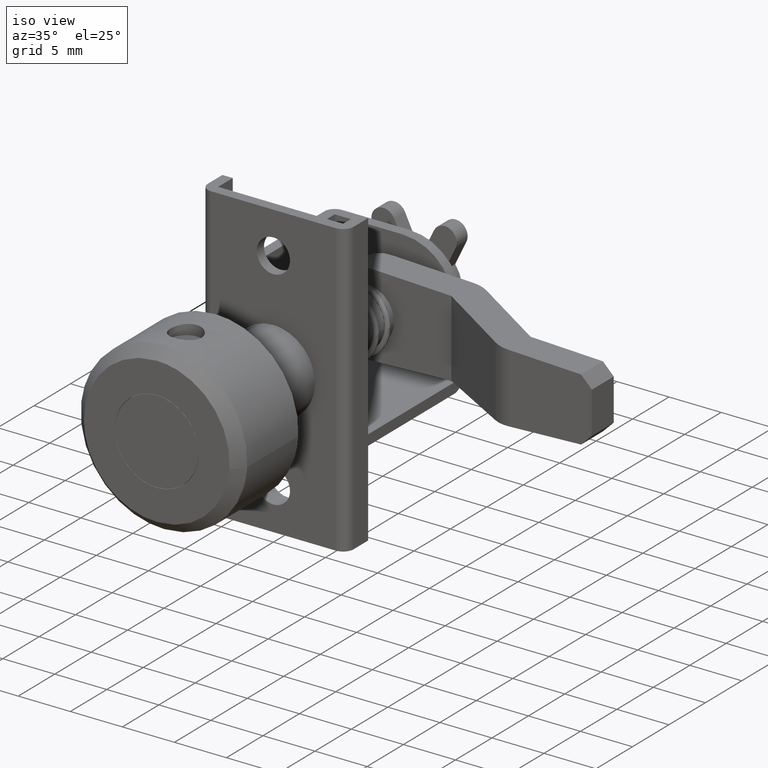
[diagram: clean part render]
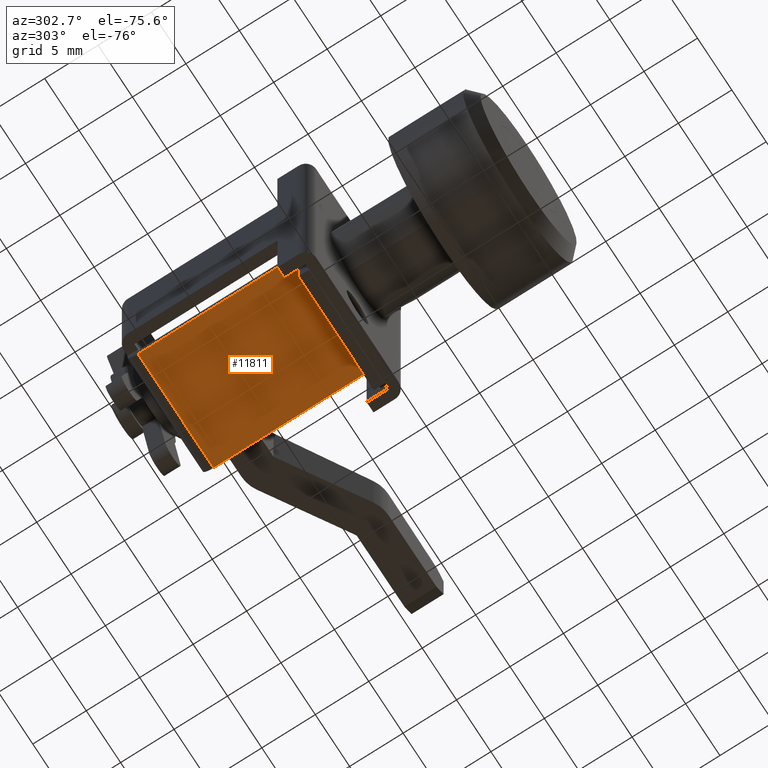
[diagram: tour spotlight — one face highlighted and labeled with its STEP entity id]
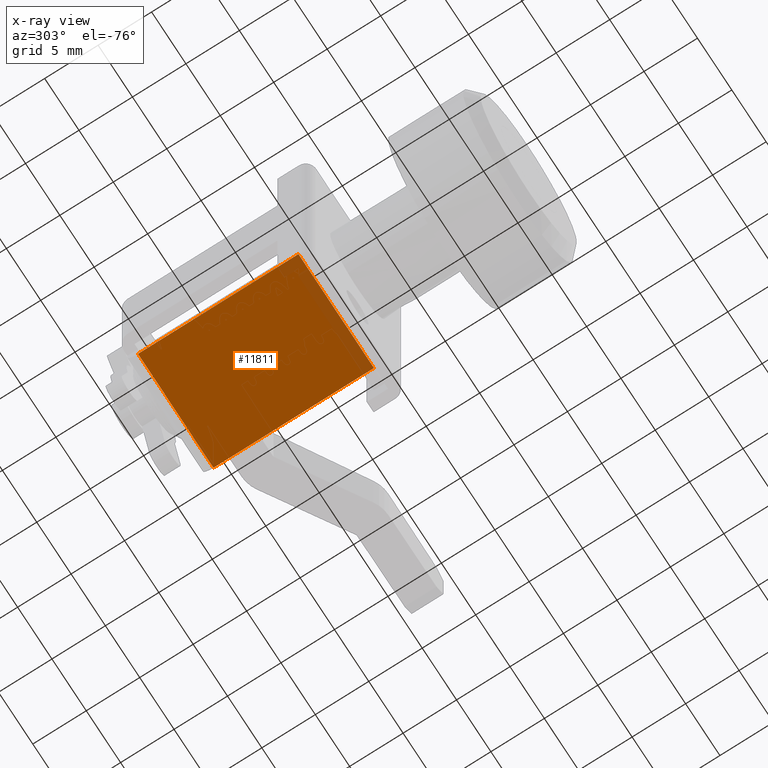
[diagram: x-ray of the same camera — body ghosted, this tour face saturated]
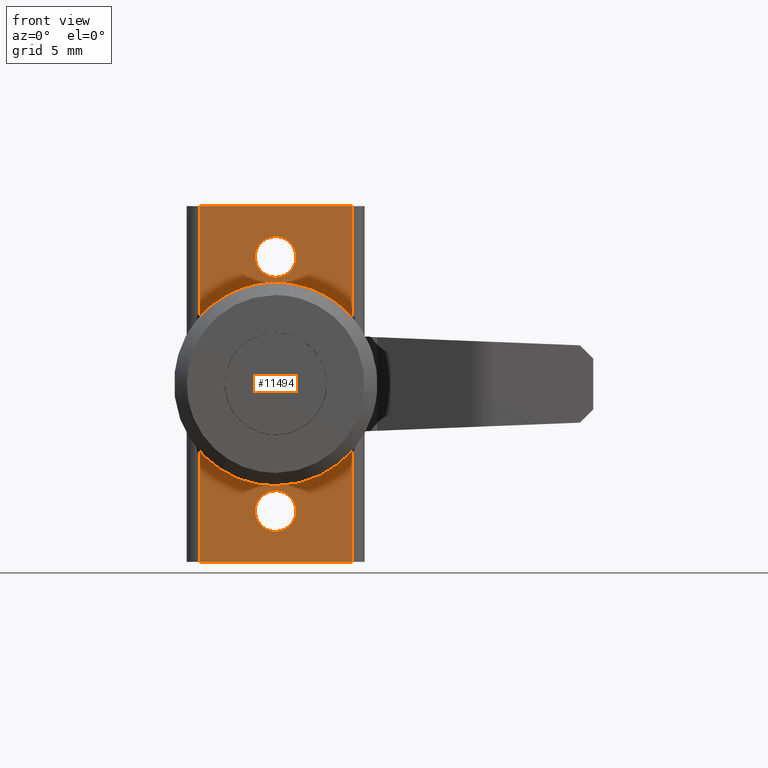
[diagram: tour spotlight — one face highlighted and labeled with its STEP entity id]
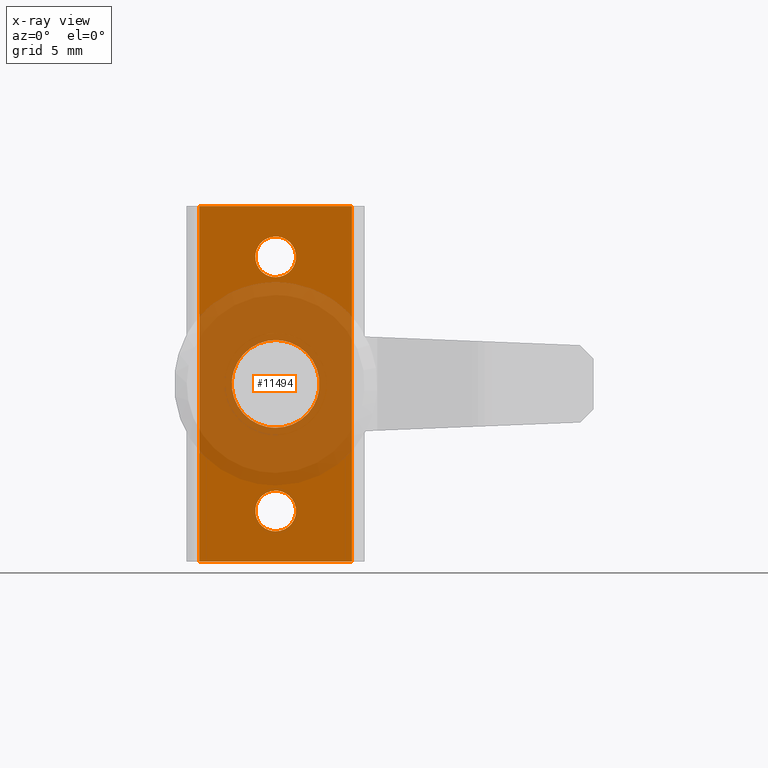
[diagram: x-ray of the same camera — body ghosted, this tour face saturated]
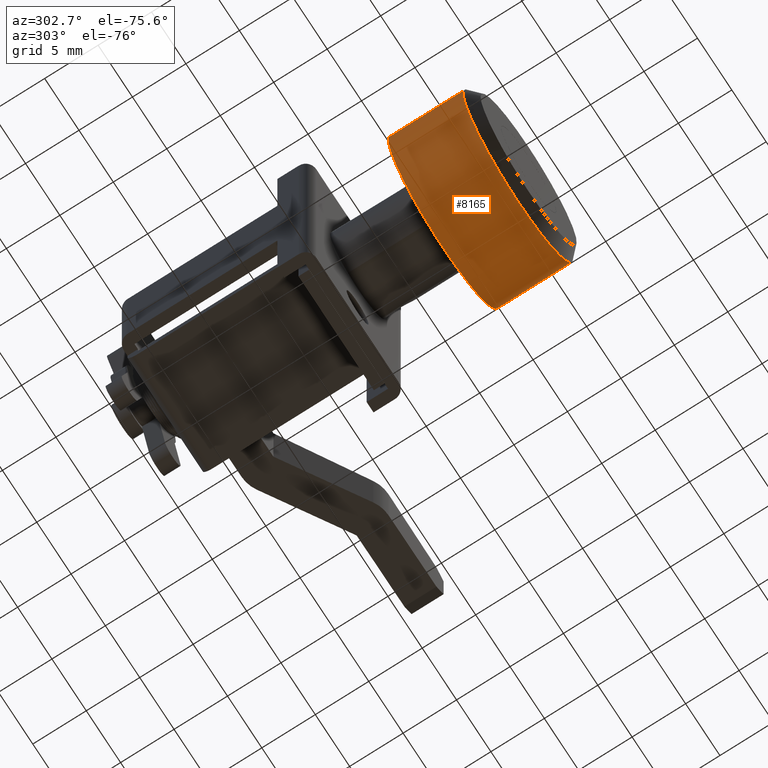
[diagram: tour spotlight — one face highlighted and labeled with its STEP entity id]
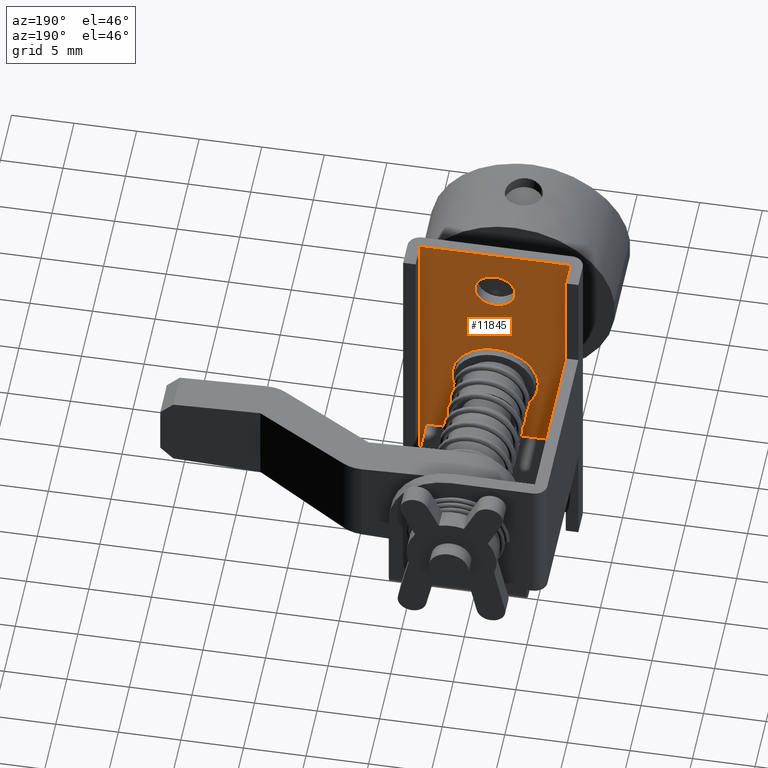
[diagram: tour spotlight — one face highlighted and labeled with its STEP entity id]
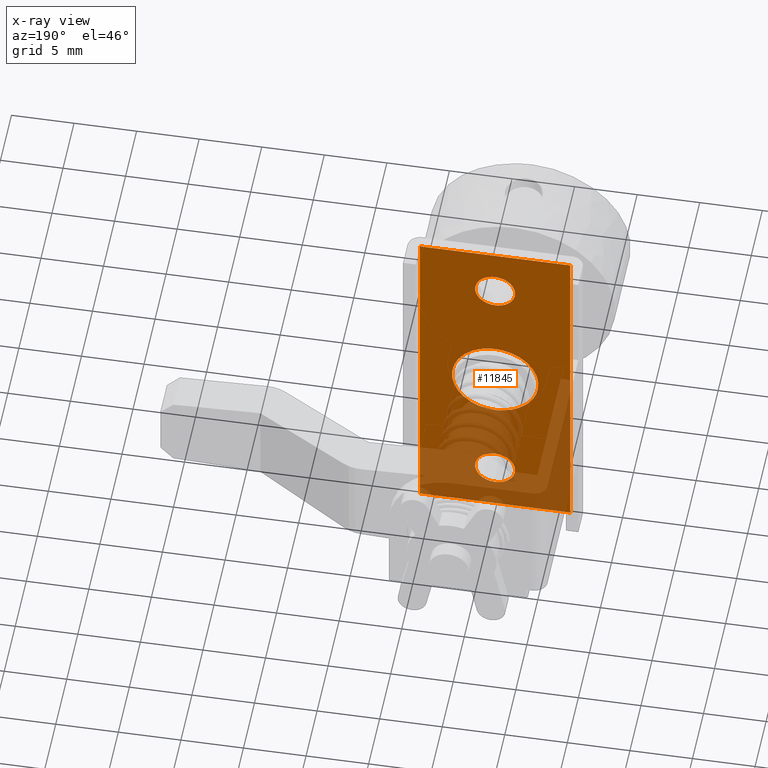
[diagram: x-ray of the same camera — body ghosted, this tour face saturated]
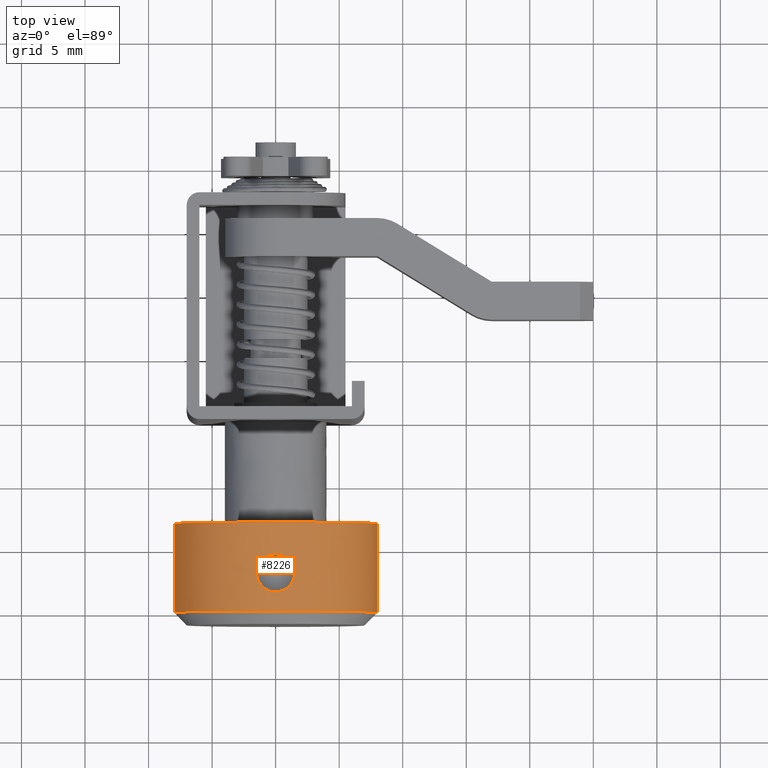
[diagram: tour spotlight — one face highlighted and labeled with its STEP entity id]
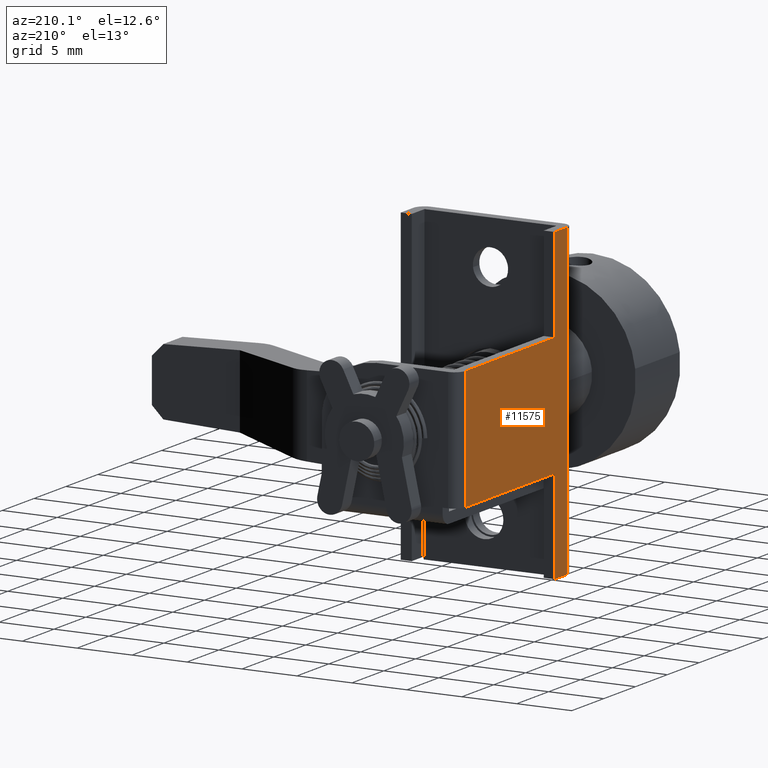
[diagram: tour spotlight — one face highlighted and labeled with its STEP entity id]
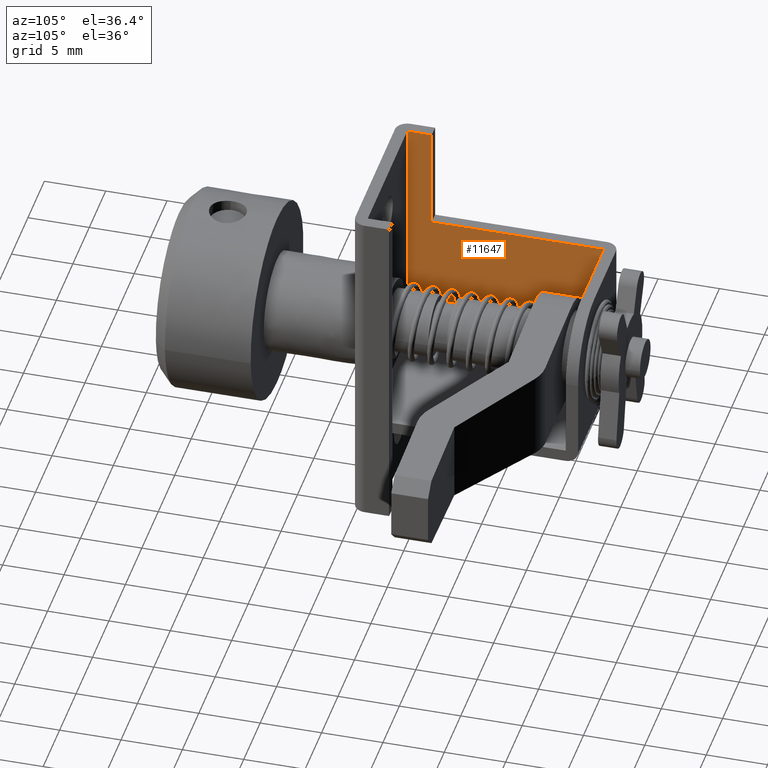
[diagram: tour spotlight — one face highlighted and labeled with its STEP entity id]
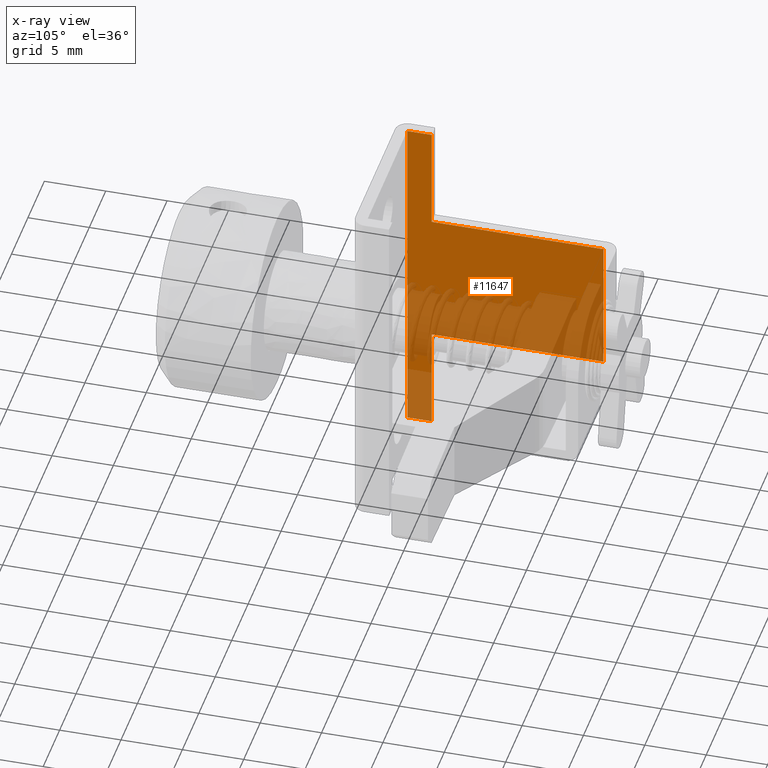
[diagram: x-ray of the same camera — body ghosted, this tour face saturated]
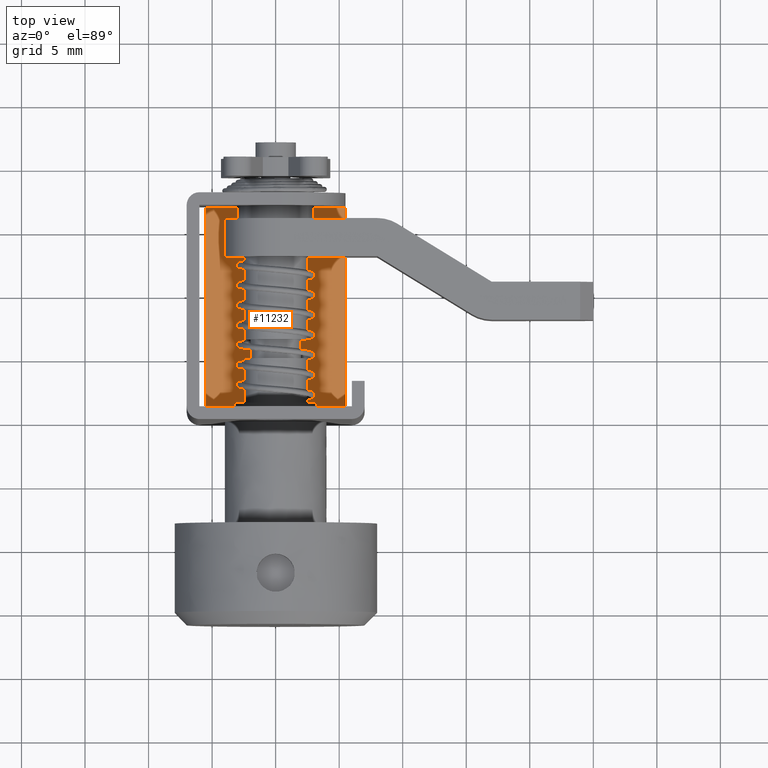
[diagram: tour spotlight — one face highlighted and labeled with its STEP entity id]
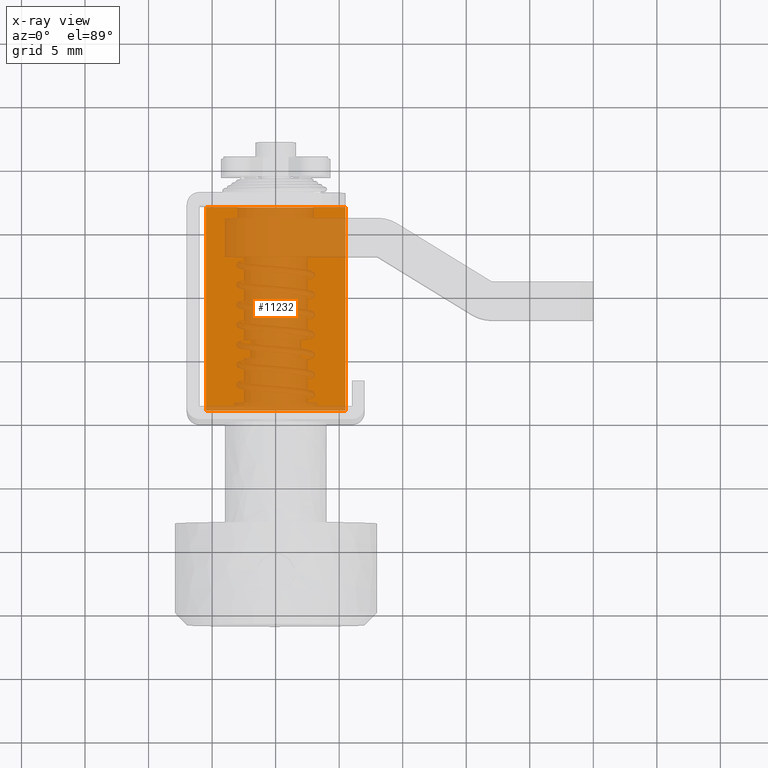
[diagram: x-ray of the same camera — body ghosted, this tour face saturated]
A machine part: a face-by-face anatomy tour. The part has 193 B-rep faces; the first image is the clean iso view, then the 8 largest visible faces are spotlighted one at a time (largest first), each with its STEP entity span.

Face 1 — auxiliary view, entity #11811. An x-ray twin of the same camera follows (body ghosted, this face saturated) — the face is partly hidden behind the body. In plain terms, the highlighted face is a freeform B-spline surface patch.
Definition (entity closure, byte-faithful):
#11120=CARTESIAN_POINT('',(2.0,5.500000000000000,-7.0));
#11121=VERTEX_POINT('',#11120);
#11127=CARTESIAN_POINT('',(2.0,-5.500000000000000,-7.0));
#11128=VERTEX_POINT('',#11127);
#11129=CARTESIAN_POINT('',(2.0,-5.500000000000000,-7.0));
#11130=CARTESIAN_POINT('',(2.0,5.500000000000000,-7.0));
#11131=QUASI_UNIFORM_CURVE('',1,(#11129,#11130),.UNSPECIFIED.,.F.,.U.);
#11132=EDGE_CURVE('',#11128,#11121,#11131,.T.);
#11187=CARTESIAN_POINT('',(17.0,5.500000000000000,-7.0));
#11188=VERTEX_POINT('',#11187);
#11202=CARTESIAN_POINT('',(2.0,5.500000000000000,-7.0));
#11203=CARTESIAN_POINT('',(17.0,5.500000000000000,-7.0));
#11204=QUASI_UNIFORM_CURVE('',1,(#11202,#11203),.UNSPECIFIED.,.F.,.U.);
#11205=EDGE_CURVE('',#11121,#11188,#11204,.T.);
#11255=CARTESIAN_POINT('',(17.0,-5.500000000000000,-7.0));
#11256=VERTEX_POINT('',#11255);
#11270=CARTESIAN_POINT('',(17.0,-5.500000000000000,-7.0));
#11271=CARTESIAN_POINT('',(17.0,5.500000000000000,-7.0));
#11272=QUASI_UNIFORM_CURVE('',1,(#11270,#11271),.UNSPECIFIED.,.F.,.U.);
#11273=EDGE_CURVE('',#11256,#11188,#11272,.T.);
#11796=CARTESIAN_POINT('',(1.250750029072912,-6.049449978679865,-7.0));
#11797=CARTESIAN_POINT('',(17.749250373258452,-6.049449978679865,-7.0));
#11798=CARTESIAN_POINT('',(1.250750029072912,6.049450273722857,-7.0));
#11799=CARTESIAN_POINT('',(17.749250373258452,6.049450273722857,-7.0));
#11800=B_SPLINE_SURFACE_WITH_KNOTS('',1,1,((#11796,#11798),(#11797,#11799)),.UNSPECIFIED.,.F.,.F.,.U.,(2,2),(2,2),(0.0,16.498500344185530),(0.0,12.098900252402720),.UNSPECIFIED.);
#11801=ORIENTED_EDGE('',*,*,#11132,.T.);
#11802=ORIENTED_EDGE('',*,*,#11205,.T.);
#11803=ORIENTED_EDGE('',*,*,#11273,.F.);
#11804=CARTESIAN_POINT('',(2.0,-5.500000000000000,-7.0));
#11805=CARTESIAN_POINT('',(17.0,-5.500000000000000,-7.0));
#11806=QUASI_UNIFORM_CURVE('',1,(#11804,#11805),.UNSPECIFIED.,.F.,.U.);
#11807=EDGE_CURVE('',#11128,#11256,#11806,.T.);
#11808=ORIENTED_EDGE('',*,*,#11807,.F.);
#11809=EDGE_LOOP('',(#11801,#11802,#11803,#11808));
#11810=FACE_OUTER_BOUND('',#11809,.T.);
#11811=ADVANCED_FACE('',(#11810),#11800,.F.);

Face 2 — front view, entity #11494. An x-ray twin of the same camera follows (body ghosted, this face saturated) — the face is partly hidden behind the body. In plain terms, the highlighted face is a freeform B-spline surface patch.
Definition (entity closure, byte-faithful):
#10467=CARTESIAN_POINT('',(-1.895389E-013,-3.425883305860149,-0.407214948410741));
#10468=VERTEX_POINT('',#10467);
#10469=CARTESIAN_POINT('',(0.0,0.0,3.449999460242545));
#10470=VERTEX_POINT('',#10469);
#10471=CARTESIAN_POINT('',(-1.895389E-013,-3.425883305860149,-0.407214948410741));
#10472=CARTESIAN_POINT('',(0.0,-3.449999999999999,-0.204321882537792));
#10473=CARTESIAN_POINT('',(0.0,-3.450000000000000,-0.000000539757455));
#10474=CARTESIAN_POINT('',(0.0,-3.450000000000000,3.449999460242546));
#10475=CARTESIAN_POINT('',(0.0,0.0,3.449999460242545));
#10483=(BOUNDED_CURVE()B_SPLINE_CURVE(2,(#10471,#10472,#10473,#10474,#10475),.UNSPECIFIED.,.F.,.U.)B_SPLINE_CURVE_WITH_KNOTS((3,2,3),(0.229562656086476,0.250000000000000,0.500000000000000),.UNSPECIFIED.)CURVE()GEOMETRIC_REPRESENTATION_ITEM()RATIONAL_B_SPLINE_CURVE((0.956027112034499,0.976056162228681,1.0,0.707106781186548,1.0))REPRESENTATION_ITEM(''));
#10484=EDGE_CURVE('',#10468,#10470,#10483,.T.);
#10486=CARTESIAN_POINT('',(-5.204170E-017,3.443565054554552,0.210616921652322));
#10487=VERTEX_POINT('',#10486);
#10488=CARTESIAN_POINT('',(0.0,0.0,3.449999460242545));
#10489=CARTESIAN_POINT('',(0.0,3.245435930797218,3.449999460242545));
#10490=CARTESIAN_POINT('',(-5.204170E-017,3.443565054554552,0.210616921652322));
#10498=(BOUNDED_CURVE()B_SPLINE_CURVE(2,(#10488,#10489,#10490),.UNSPECIFIED.,.F.,.U.)B_SPLINE_CURVE_WITH_KNOTS((3,3),(0.500000000000000,0.739332962240513),.UNSPECIFIED.)CURVE()GEOMETRIC_REPRESENTATION_ITEM()RATIONAL_B_SPLINE_CURVE((1.0,0.719603993284871,0.976072041670082))REPRESENTATION_ITEM(''));
#10499=EDGE_CURVE('',#10470,#10487,#10498,.T.);
#10566=CARTESIAN_POINT('',(0.0,0.0,-3.450000539757455));
#10567=VERTEX_POINT('',#10566);
#10568=CARTESIAN_POINT('',(0.0,0.0,-3.450000539757455));
#10569=CARTESIAN_POINT('',(0.0,-3.064205448032195,-3.450000539757456));
#10570=CARTESIAN_POINT('',(-1.895389E-013,-3.425883305860149,-0.407214948410741));
#10578=(BOUNDED_CURVE()B_SPLINE_CURVE(2,(#10568,#10569,#10570),.UNSPECIFIED.,.F.,.U.)B_SPLINE_CURVE_WITH_KNOTS((3,3),(0.0,0.229562656086476),.UNSPECIFIED.)CURVE()GEOMETRIC_REPRESENTATION_ITEM()RATIONAL_B_SPLINE_CURVE((1.0,0.731050618957866,0.956027112034499))REPRESENTATION_ITEM(''));
#10579=EDGE_CURVE('',#10567,#10468,#10578,.T.);
#10613=CARTESIAN_POINT('',(-5.204170E-017,3.443565054554552,0.210616921652322));
#10614=CARTESIAN_POINT('',(0.0,3.450000000000000,0.105406493637238));
#10615=CARTESIAN_POINT('',(0.0,3.450000000000000,-0.000000539757455));
#10616=CARTESIAN_POINT('',(0.0,3.450000000000000,-3.450000539757455));
#10617=CARTESIAN_POINT('',(0.0,0.0,-3.450000539757455));
#10625=(BOUNDED_CURVE()B_SPLINE_CURVE(2,(#10613,#10614,#10615,#10616,#10617),.UNSPECIFIED.,.F.,.U.)B_SPLINE_CURVE_WITH_KNOTS((3,2,3),(0.739332962240513,0.750000000000000,1.0),.UNSPECIFIED.)CURVE()GEOMETRIC_REPRESENTATION_ITEM()RATIONAL_B_SPLINE_CURVE((0.976072041670083,0.987502787901677,1.0,0.707106781186548,1.0))REPRESENTATION_ITEM(''));
#10626=EDGE_CURVE('',#10487,#10567,#10625,.T.);
#10653=CARTESIAN_POINT('',(-5.146464E-017,-1.588815242176082,9.811145502257226));
#10654=VERTEX_POINT('',#10653);
#10655=CARTESIAN_POINT('',(0.0,0.0,11.600000277756701));
#10656=VERTEX_POINT('',#10655);
#10657=CARTESIAN_POINT('',(-5.146464E-017,-1.588815242176083,9.811145502257226));
#10658=CARTESIAN_POINT('',(0.0,-1.600000000000000,9.905241686264469));
#10659=CARTESIAN_POINT('',(0.0,-1.600000000000000,10.000000277756699));
#10660=CARTESIAN_POINT('',(0.0,-1.600000000000000,11.600000277756697));
#10661=CARTESIAN_POINT('',(0.0,0.0,11.600000277756701));
#10669=(BOUNDED_CURVE()B_SPLINE_CURVE(2,(#10657,#10658,#10659,#10660,#10661),.UNSPECIFIED.,.F.,.U.)B_SPLINE_CURVE_WITH_KNOTS((3,2,3),(0.229562473505292,0.250000000000000,0.500000000000000),.UNSPECIFIED.)CURVE()GEOMETRIC_REPRESENTATION_ITEM()RATIONAL_B_SPLINE_CURVE((0.956026754167595,0.976055948321519,1.0,0.707106781186548,1.0))REPRESENTATION_ITEM(''));
#10670=EDGE_CURVE('',#10654,#10656,#10669,.T.);
#10672=CARTESIAN_POINT('',(-5.204170E-017,1.597015677469046,10.097677941109600));
#10673=VERTEX_POINT('',#10672);
#10674=CARTESIAN_POINT('',(0.0,0.0,11.600000277756701));
#10675=CARTESIAN_POINT('',(0.0,1.505129706865683,11.600000277756699));
#10676=CARTESIAN_POINT('',(-5.204170E-017,1.597015677469047,10.097677941109600));
#10684=(BOUNDED_CURVE()B_SPLINE_CURVE(2,(#10674,#10675,#10676),.UNSPECIFIED.,.F.,.U.)B_SPLINE_CURVE_WITH_KNOTS((3,3),(0.500000000000000,0.739332962220979),.UNSPECIFIED.)CURVE()GEOMETRIC_REPRESENTATION_ITEM()RATIONAL_B_SPLINE_CURVE((1.0,0.719603993307756,0.976072041628219))REPRESENTATION_ITEM(''));
#10685=EDGE_CURVE('',#10656,#10673,#10684,.T.);
#10752=CARTESIAN_POINT('',(0.0,0.0,8.400000277756700));
#10753=VERTEX_POINT('',#10752);
#10754=CARTESIAN_POINT('',(0.0,0.0,8.400000277756700));
#10755=CARTESIAN_POINT('',(0.0,-1.421079241434529,8.400000277756703));
#10756=CARTESIAN_POINT('',(-5.146464E-017,-1.588815242176082,9.811145502257226));
#10764=(BOUNDED_CURVE()B_SPLINE_CURVE(2,(#10754,#10755,#10756),.UNSPECIFIED.,.F.,.U.)B_SPLINE_CURVE_WITH_KNOTS((3,3),(0.0,0.229562473505292),.UNSPECIFIED.)CURVE()GEOMETRIC_REPRESENTATION_ITEM()RATIONAL_B_SPLINE_CURVE((1.0,0.731050832865028,0.956026754167595))REPRESENTATION_ITEM(''));
#10765=EDGE_CURVE('',#10753,#10654,#10764,.T.);
#10799=CARTESIAN_POINT('',(-5.204170E-017,1.597015677469046,10.097677941109600));
#10800=CARTESIAN_POINT('',(0.0,1.600000000000000,10.048884699131843));
#10801=CARTESIAN_POINT('',(0.0,1.600000000000000,10.000000277756699));
#10802=CARTESIAN_POINT('',(0.0,1.600000000000000,8.400000277756702));
#10803=CARTESIAN_POINT('',(0.0,0.0,8.400000277756700));
#10811=(BOUNDED_CURVE()B_SPLINE_CURVE(2,(#10799,#10800,#10801,#10802,#10803),.UNSPECIFIED.,.F.,.U.)B_SPLINE_CURVE_WITH_KNOTS((3,2,3),(0.739332962220980,0.750000000000000,1.0),.UNSPECIFIED.)CURVE()GEOMETRIC_REPRESENTATION_ITEM()RATIONAL_B_SPLINE_CURVE((0.976072041628220,0.987502787878793,1.0,0.707106781186548,1.0))REPRESENTATION_ITEM(''));
#10812=EDGE_CURVE('',#10673,#10753,#10811,.T.);
#10839=CARTESIAN_POINT('',(-5.146464E-017,1.588815242176082,-9.811144946743948));
#10840=VERTEX_POINT('',#10839);
#10841=CARTESIAN_POINT('',(0.0,0.0,-11.599999722243419));
#10842=VERTEX_POINT('',#10841);
#10843=CARTESIAN_POINT('',(-5.146464E-017,1.588815242176082,-9.811144946743948));
#10844=CARTESIAN_POINT('',(0.0,1.600000000000000,-9.905241130751190));
#10845=CARTESIAN_POINT('',(0.0,1.600000000000000,-9.999999722243420));
#10846=CARTESIAN_POINT('',(0.0,1.600000000000000,-11.599999722243423));
#10847=CARTESIAN_POINT('',(0.0,0.0,-11.599999722243419));
#10855=(BOUNDED_CURVE()B_SPLINE_CURVE(2,(#10843,#10844,#10845,#10846,#10847),.UNSPECIFIED.,.F.,.U.)B_SPLINE_CURVE_WITH_KNOTS((3,2,3),(0.729562473505292,0.750000000000000,1.0),.UNSPECIFIED.)CURVE()GEOMETRIC_REPRESENTATION_ITEM()RATIONAL_B_SPLINE_CURVE((0.956026754167596,0.976055948321519,1.0,0.707106781186548,1.0))REPRESENTATION_ITEM(''));
#10856=EDGE_CURVE('',#10840,#10842,#10855,.T.);
#10858=CARTESIAN_POINT('',(-5.204170E-017,-1.597015677469046,-10.097677385596320));
#10859=VERTEX_POINT('',#10858);
#10860=CARTESIAN_POINT('',(0.0,0.0,-11.599999722243419));
#10861=CARTESIAN_POINT('',(0.0,-1.505129706865690,-11.599999722243423));
#10862=CARTESIAN_POINT('',(-5.204170E-017,-1.597015677469046,-10.097677385596318));
#10870=(BOUNDED_CURVE()B_SPLINE_CURVE(2,(#10860,#10861,#10862),.UNSPECIFIED.,.F.,.U.)B_SPLINE_CURVE_WITH_KNOTS((3,3),(0.0,0.239332962220980),.UNSPECIFIED.)CURVE()GEOMETRIC_REPRESENTATION_ITEM()RATIONAL_B_SPLINE_CURVE((1.0,0.719603993307755,0.976072041628220))REPRESENTATION_ITEM(''));
#10871=EDGE_CURVE('',#10842,#10859,#10870,.T.);
#10938=CARTESIAN_POINT('',(0.0,0.0,-8.399999722243420));
#10939=VERTEX_POINT('',#10938);
#10940=CARTESIAN_POINT('',(0.0,0.0,-8.399999722243420));
#10941=CARTESIAN_POINT('',(0.0,1.421079241434523,-8.399999722243422));
#10942=CARTESIAN_POINT('',(-5.146464E-017,1.588815242176083,-9.811144946743948));
#10950=(BOUNDED_CURVE()B_SPLINE_CURVE(2,(#10940,#10941,#10942),.UNSPECIFIED.,.F.,.U.)B_SPLINE_CURVE_WITH_KNOTS((3,3),(0.500000000000000,0.729562473505291),.UNSPECIFIED.)CURVE()GEOMETRIC_REPRESENTATION_ITEM()RATIONAL_B_SPLINE_CURVE((1.0,0.731050832865029,0.956026754167594))REPRESENTATION_ITEM(''));
#10951=EDGE_CURVE('',#10939,#10840,#10950,.T.);
#10985=CARTESIAN_POINT('',(-5.204170E-017,-1.597015677469046,-10.097677385596318));
#10986=CARTESIAN_POINT('',(0.0,-1.600000000000001,-10.048884143618562));
#10987=CARTESIAN_POINT('',(0.0,-1.600000000000000,-9.999999722243420));
#10988=CARTESIAN_POINT('',(0.0,-1.600000000000000,-8.399999722243420));
#10989=CARTESIAN_POINT('',(0.0,0.0,-8.399999722243420));
#10997=(BOUNDED_CURVE()B_SPLINE_CURVE(2,(#10985,#10986,#10987,#10988,#10989),.UNSPECIFIED.,.F.,.U.)B_SPLINE_CURVE_WITH_KNOTS((3,2,3),(0.239332962220980,0.250000000000000,0.500000000000000),.UNSPECIFIED.)CURVE()GEOMETRIC_REPRESENTATION_ITEM()RATIONAL_B_SPLINE_CURVE((0.976072041628220,0.987502787878793,1.0,0.707106781186548,1.0))REPRESENTATION_ITEM(''));
#10998=EDGE_CURVE('',#10859,#10939,#10997,.T.);
#11344=CARTESIAN_POINT('',(7.347638E-016,-6.0,14.000000277756600));
#11345=VERTEX_POINT('',#11344);
#11410=CARTESIAN_POINT('',(-8.881784E-016,6.0,14.000000277756600));
#11411=VERTEX_POINT('',#11410);
#11425=CARTESIAN_POINT('',(-8.881784E-016,6.0,14.000000277756600));
#11426=CARTESIAN_POINT('',(7.347638E-016,-6.0,14.000000277756600));
#11427=QUASI_UNIFORM_CURVE('',1,(#11425,#11426),.UNSPECIFIED.,.F.,.U.);
#11428=EDGE_CURVE('',#11411,#11345,#11427,.T.);
#11449=CARTESIAN_POINT('',(-7.347638E-016,6.599399976741672,-15.398599930817831));
#11450=CARTESIAN_POINT('',(-7.347638E-016,-6.599400298606753,-15.398599930817831));
#11451=CARTESIAN_POINT('',(-7.347638E-016,6.599399976741672,15.398600987010150));
#11452=CARTESIAN_POINT('',(-7.347638E-016,-6.599400298606753,15.398600987010150));
#11453=B_SPLINE_SURFACE_WITH_KNOTS('',1,1,((#11449,#11451),(#11450,#11452)),.UNSPECIFIED.,.F.,.F.,.U.,(2,2),(2,2),(0.0,13.198800275348431),(0.0,30.797200917827979),.UNSPECIFIED.);
#11454=ORIENTED_EDGE('',*,*,#11428,.F.);
#11455=CARTESIAN_POINT('',(-8.881784E-016,6.0,-13.999999722243301));
#11456=VERTEX_POINT('',#11455);
#11457=CARTESIAN_POINT('',(-8.881784E-016,6.0,-13.999999722243301));
#11458=CARTESIAN_POINT('',(-8.881784E-016,6.0,14.000000277756600));
#11459=QUASI_UNIFORM_CURVE('',1,(#11457,#11458),.UNSPECIFIED.,.F.,.U.);
#11460=EDGE_CURVE('',#11456,#11411,#11459,.T.);
#11461=ORIENTED_EDGE('',*,*,#11460,.F.);
#11462=CARTESIAN_POINT('',(7.347638E-016,-6.0,-13.999999722243301));
#11463=VERTEX_POINT('',#11462);
#11464=CARTESIAN_POINT('',(-8.881784E-016,6.0,-13.999999722243301));
#11465=CARTESIAN_POINT('',(7.347638E-016,-6.0,-13.999999722243301));
#11466=QUASI_UNIFORM_CURVE('',1,(#11464,#11465),.UNSPECIFIED.,.F.,.U.);
#11467=EDGE_CURVE('',#11456,#11463,#11466,.T.);
#11468=ORIENTED_EDGE('',*,*,#11467,.T.);
#11469=CARTESIAN_POINT('',(7.347638E-016,-6.0,-13.999999722243301));
#11470=CARTESIAN_POINT('',(7.347638E-016,-6.0,14.000000277756600));
#11471=QUASI_UNIFORM_CURVE('',1,(#11469,#11470),.UNSPECIFIED.,.F.,.U.);
#11472=EDGE_CURVE('',#11463,#11345,#11471,.T.);
#11473=ORIENTED_EDGE('',*,*,#11472,.T.);
#11474=EDGE_LOOP('',(#11454,#11461,#11468,#11473));
#11475=FACE_OUTER_BOUND('',#11474,.T.);
#11476=ORIENTED_EDGE('',*,*,#10871,.F.);
#11477=ORIENTED_EDGE('',*,*,#10856,.F.);
#11478=ORIENTED_EDGE('',*,*,#10951,.F.);
#11479=ORIENTED_EDGE('',*,*,#10998,.F.);
#11480=EDGE_LOOP('',(#11476,#11477,#11478,#11479));
#11481=FACE_BOUND('',#11480,.T.);
#11482=ORIENTED_EDGE('',*,*,#10685,.F.);
#11483=ORIENTED_EDGE('',*,*,#10670,.F.);
#11484=ORIENTED_EDGE('',*,*,#10765,.F.);
#11485=ORIENTED_EDGE('',*,*,#10812,.F.);
#11486=EDGE_LOOP('',(#11482,#11483,#11484,#11485));
#11487=FACE_BOUND('',#11486,.T.);
#11488=ORIENTED_EDGE('',*,*,#10499,.F.);
#11489=ORIENTED_EDGE('',*,*,#10484,.F.);
#11490=ORIENTED_EDGE('',*,*,#10579,.F.);
#11491=ORIENTED_EDGE('',*,*,#10626,.F.);
#11492=EDGE_LOOP('',(#11488,#11489,#11490,#11491));
#11493=FACE_BOUND('',#11492,.T.);
#11494=ADVANCED_FACE('',(#11475,#11481,#11487,#11493),#11453,.T.);

Face 3 — auxiliary view, entity #8165. In plain terms, the highlighted face is a freeform B-spline surface patch.
Definition (entity closure, byte-faithful):
#7899=CARTESIAN_POINT('',(-15.0,7.944077023847207,0.944270480971614));
#7900=VERTEX_POINT('',#7899);
#7901=CARTESIAN_POINT('',(-14.999999999999931,4.302806756810458,-6.744320390914504));
#7902=VERTEX_POINT('',#7901);
#7903=CARTESIAN_POINT('',(-14.999999999999996,7.944077023847206,0.944270480971614));
#7904=CARTESIAN_POINT('',(-15.0,8.000000409239698,0.473791241121631));
#7905=CARTESIAN_POINT('',(-15.0,8.000000409239698,0.0));
#7906=CARTESIAN_POINT('',(-14.999999999999995,8.000000409239698,-4.385549248116032));
#7907=CARTESIAN_POINT('',(-14.999999999999931,4.302806756810458,-6.744320390914504));
#7915=(BOUNDED_CURVE()B_SPLINE_CURVE(2,(#7903,#7904,#7905,#7906,#7907),.UNSPECIFIED.,.F.,.U.)B_SPLINE_CURVE_WITH_KNOTS((3,2,3),(0.229562545768574,0.250000000000000,0.407950112627523),.UNSPECIFIED.)CURVE()GEOMETRIC_REPRESENTATION_ITEM()RATIONAL_B_SPLINE_CURVE((0.956026895806635,0.976056032983221,1.0,0.814949932402310,0.863729296954907))REPRESENTATION_ITEM(''));
#7916=EDGE_CURVE('',#7900,#7902,#7915,.T.);
#7959=CARTESIAN_POINT('',(-14.999999999996280,-7.975338260626617,-0.627672765851399));
#7960=VERTEX_POINT('',#7959);
#7966=CARTESIAN_POINT('',(-15.0,-7.985078294908215,-0.488383137028375));
#7967=VERTEX_POINT('',#7966);
#7968=CARTESIAN_POINT('',(-14.999999999996280,-7.975338260626617,-0.627672765851399));
#7969=CARTESIAN_POINT('',(-15.000000000000002,-7.980816081441435,-0.558070453029250));
#7970=CARTESIAN_POINT('',(-14.999999999999998,-7.985078294908215,-0.488383137028375));
#7978=(BOUNDED_CURVE()B_SPLINE_CURVE(2,(#7968,#7969,#7970),.UNSPECIFIED.,.F.,.U.)B_SPLINE_CURVE_WITH_KNOTS((3,3),(0.736331300631548,0.739333074158605),.UNSPECIFIED.)CURVE()GEOMETRIC_REPRESENTATION_ITEM()RATIONAL_B_SPLINE_CURVE((0.969723356169272,0.972855592344786,0.976072281531976))REPRESENTATION_ITEM(''));
#7979=EDGE_CURVE('',#7960,#7967,#7978,.T.);
#8032=CARTESIAN_POINT('',(-15.0,0.000000409239789,-7.999999999999910));
#8033=VERTEX_POINT('',#8032);
#8034=CARTESIAN_POINT('',(-14.999999999999934,4.302806756810458,-6.744320390914505));
#8035=CARTESIAN_POINT('',(-14.999999999999996,2.334624852275240,-7.999999999999909));
#8036=CARTESIAN_POINT('',(-15.0,0.000000409239789,-7.999999999999910));
#8044=(BOUNDED_CURVE()B_SPLINE_CURVE(2,(#8034,#8035,#8036),.UNSPECIFIED.,.F.,.U.)B_SPLINE_CURVE_WITH_KNOTS((3,3),(0.407950112627522,0.500000000000000),.UNSPECIFIED.)CURVE()GEOMETRIC_REPRESENTATION_ITEM()RATIONAL_B_SPLINE_CURVE((0.863729296954906,0.892156848784237,1.0))REPRESENTATION_ITEM(''));
#8045=EDGE_CURVE('',#7902,#8033,#8044,.T.);
#8047=CARTESIAN_POINT('',(-15.0,0.000000409239789,-7.999999999999910));
#8048=CARTESIAN_POINT('',(-15.000000000000004,-7.395123523973000,-7.999999999999910));
#8049=CARTESIAN_POINT('',(-14.999999999996280,-7.975338260626617,-0.627672765851399));
#8057=(BOUNDED_CURVE()B_SPLINE_CURVE(2,(#8047,#8048,#8049),.UNSPECIFIED.,.F.,.U.)B_SPLINE_CURVE_WITH_KNOTS((3,3),(0.500000000000000,0.736331300631547),.UNSPECIFIED.)CURVE()GEOMETRIC_REPRESENTATION_ITEM()RATIONAL_B_SPLINE_CURVE((1.0,0.723120658606626,0.969723356169270))REPRESENTATION_ITEM(''));
#8058=EDGE_CURVE('',#8033,#7960,#8057,.T.);
#8093=CARTESIAN_POINT('',(-7.824999999999898,7.944076620149032,0.944273877254054));
#8094=CARTESIAN_POINT('',(-7.824999999999896,7.971101332828545,0.716917829103810));
#8095=CARTESIAN_POINT('',(-7.824999999999896,7.985078796614633,0.488388316278847));
#8096=CARTESIAN_POINT('',(-7.824999999999896,8.473467112893481,-7.496690071095998));
#8097=CARTESIAN_POINT('',(-7.824999999999896,0.488388725518636,-7.985078387374844));
#8098=CARTESIAN_POINT('',(-7.824999999999896,-7.496689661856208,-8.473466703653692));
#8099=CARTESIAN_POINT('',(-7.824999999999896,-7.985077978135055,-0.488388316278847));
#8100=CARTESIAN_POINT('',(-15.179375000000004,7.944076620149032,0.944273877254054));
#8101=CARTESIAN_POINT('',(-15.179375000000009,7.971101332828545,0.716917829103810));
#8102=CARTESIAN_POINT('',(-15.179375000000000,7.985078796614633,0.488388316278847));
#8103=CARTESIAN_POINT('',(-15.179375000000000,8.473467112893481,-7.496690071095998));
#8104=CARTESIAN_POINT('',(-15.179375000000000,0.488388725518636,-7.985078387374844));
#8105=CARTESIAN_POINT('',(-15.179375000000000,-7.496689661856208,-8.473466703653692));
#8106=CARTESIAN_POINT('',(-15.179375000000000,-7.985077978135055,-0.488388316278847));
#8114=(BOUNDED_SURFACE()B_SPLINE_SURFACE(2,1,((#8093,#8100),(#8094,#8101),(#8095,#8102),(#8096,#8103),(#8097,#8104),(#8098,#8105),(#8099,#8106)),.UNSPECIFIED.,.F.,.F.,.U.)B_SPLINE_SURFACE_WITH_KNOTS((3,2,2,3),(2,2),(0.0,0.530193359837556,13.785027355776450,27.039861351715341),(0.0,7.354375000000108),.UNSPECIFIED.)GEOMETRIC_REPRESENTATION_ITEM()RATIONAL_B_SPLINE_SURFACE(((0.977505800795127,0.977505800795127),(0.988284271247462,0.988284271247462),(1.0,1.0),(0.707106781186548,0.707106781186548),(1.0,1.0),(0.707106781186548,0.707106781186548),(1.0,1.0)))REPRESENTATION_ITEM('')SURFACE());
#8115=CARTESIAN_POINT('',(-7.999999999999915,7.944077028764651,0.944270439601385));
#8116=VERTEX_POINT('',#8115);
#8117=CARTESIAN_POINT('',(-7.999999999999900,0.000000409239789,-7.999999999999910));
#8118=VERTEX_POINT('',#8117);
#8119=CARTESIAN_POINT('',(-7.999999999999915,7.944077028764651,0.944270439601385));
#8120=CARTESIAN_POINT('',(-7.999999999999899,8.000000409239698,0.473791220217839));
#8121=CARTESIAN_POINT('',(-7.999999999999900,8.000000409239698,0.0));
#8122=CARTESIAN_POINT('',(-7.999999999999900,8.000000409239698,-7.999999999999911));
#8123=CARTESIAN_POINT('',(-7.999999999999900,0.000000409239789,-7.999999999999910));
#8131=(BOUNDED_CURVE()B_SPLINE_CURVE(2,(#8119,#8120,#8121,#8122,#8123),.UNSPECIFIED.,.F.,.U.)B_SPLINE_CURVE_WITH_KNOTS((3,2,3),(0.229562546648690,0.250000000000000,0.500000000000000),.UNSPECIFIED.)CURVE()GEOMETRIC_REPRESENTATION_ITEM()RATIONAL_B_SPLINE_CURVE((0.956026897531698,0.976056034014340,1.0,0.707106781186547,1.0))REPRESENTATION_ITEM(''));
#8132=EDGE_CURVE('',#8116,#8118,#8131,.T.);
#8133=ORIENTED_EDGE('',*,*,#8132,.T.);
#8134=CARTESIAN_POINT('',(-7.999999999999870,-7.985078298775548,-0.488383073796675));
#8135=VERTEX_POINT('',#8134);
#8136=CARTESIAN_POINT('',(-7.999999999999900,0.000000409239789,-7.999999999999910));
#8137=CARTESIAN_POINT('',(-7.999999999999900,-7.525653076090388,-7.999999999999911));
#8138=CARTESIAN_POINT('',(-7.999999999999869,-7.985078298775548,-0.488383073796675));
#8146=(BOUNDED_CURVE()B_SPLINE_CURVE(2,(#8136,#8137,#8138),.UNSPECIFIED.,.F.,.U.)B_SPLINE_CURVE_WITH_KNOTS((3,3),(0.500000000000000,0.739333075524957),.UNSPECIFIED.)CURVE()GEOMETRIC_REPRESENTATION_ITEM()RATIONAL_B_SPLINE_CURVE((1.0,0.719603860563889,0.976072284460331))REPRESENTATION_ITEM(''));
#8147=EDGE_CURVE('',#8118,#8135,#8146,.T.);
#8148=ORIENTED_EDGE('',*,*,#8147,.T.);
#8149=CARTESIAN_POINT('',(-7.999999999999870,-7.985078298775548,-0.488383073796675));
#8150=CARTESIAN_POINT('',(-15.0,-7.985078294908215,-0.488383137028375));
#8151=QUASI_UNIFORM_CURVE('',1,(#8149,#8150),.UNSPECIFIED.,.F.,.U.);
#8152=EDGE_CURVE('',#8135,#7967,#8151,.T.);
#8153=ORIENTED_EDGE('',*,*,#8152,.T.);
#8154=ORIENTED_EDGE('',*,*,#7979,.F.);
#8155=ORIENTED_EDGE('',*,*,#8058,.F.);
#8156=ORIENTED_EDGE('',*,*,#8045,.F.);
#8157=ORIENTED_EDGE('',*,*,#7916,.F.);
#8158=CARTESIAN_POINT('',(-7.999999999999915,7.944077028764651,0.944270439601385));
#8159=CARTESIAN_POINT('',(-15.0,7.944077023847207,0.944270480971614));
#8160=QUASI_UNIFORM_CURVE('',1,(#8158,#8159),.UNSPECIFIED.,.F.,.U.);
#8161=EDGE_CURVE('',#8116,#7900,#8160,.T.);
#8162=ORIENTED_EDGE('',*,*,#8161,.F.);
#8163=EDGE_LOOP('',(#8133,#8148,#8153,#8154,#8155,#8156,#8157,#8162));
#8164=FACE_OUTER_BOUND('',#8163,.T.);
#8165=ADVANCED_FACE('',(#8164),#8114,.T.);

Face 4 — auxiliary view, entity #11845. An x-ray twin of the same camera follows (body ghosted, this face saturated) — the face is partly hidden behind the body. In plain terms, the highlighted face is a freeform B-spline surface patch.
Definition (entity closure, byte-faithful):
#10501=CARTESIAN_POINT('',(1.0,3.443565054554552,0.210616921652322));
#10502=VERTEX_POINT('',#10501);
#10508=CARTESIAN_POINT('',(1.0,0.0,3.449999460242545));
#10509=VERTEX_POINT('',#10508);
#10510=CARTESIAN_POINT('',(1.0,0.0,3.449999460242545));
#10511=CARTESIAN_POINT('',(1.0,3.245435930797218,3.449999460242545));
#10512=CARTESIAN_POINT('',(1.0,3.443565054554552,0.210616921652322));
#10520=(BOUNDED_CURVE()B_SPLINE_CURVE(2,(#10510,#10511,#10512),.UNSPECIFIED.,.F.,.U.)B_SPLINE_CURVE_WITH_KNOTS((3,3),(0.500000000000000,0.739332962240513),.UNSPECIFIED.)CURVE()GEOMETRIC_REPRESENTATION_ITEM()RATIONAL_B_SPLINE_CURVE((1.0,0.719603993284871,0.976072041670082))REPRESENTATION_ITEM(''));
#10521=EDGE_CURVE('',#10509,#10502,#10520,.T.);
#10523=CARTESIAN_POINT('',(1.0,-3.425883300423252,-0.407214994151615));
#10524=VERTEX_POINT('',#10523);
#10525=CARTESIAN_POINT('',(1.0,-3.425883300423252,-0.407214994151615));
#10526=CARTESIAN_POINT('',(1.0,-3.450000000000000,-0.204321905650005));
#10527=CARTESIAN_POINT('',(1.0,-3.450000000000000,-0.000000539757455));
#10528=CARTESIAN_POINT('',(1.0,-3.450000000000000,3.449999460242546));
#10529=CARTESIAN_POINT('',(1.0,0.0,3.449999460242545));
#10537=(BOUNDED_CURVE()B_SPLINE_CURVE(2,(#10525,#10526,#10527,#10528,#10529),.UNSPECIFIED.,.F.,.U.)B_SPLINE_CURVE_WITH_KNOTS((3,2,3),(0.229562653830019,0.250000000000000,0.500000000000000),.UNSPECIFIED.)CURVE()GEOMETRIC_REPRESENTATION_ITEM()RATIONAL_B_SPLINE_CURVE((0.956027107611743,0.976056159585078,1.0,0.707106781186548,1.0))REPRESENTATION_ITEM(''));
#10538=EDGE_CURVE('',#10524,#10509,#10537,.T.);
#10582=CARTESIAN_POINT('',(1.0,0.0,-3.450000539757455));
#10583=VERTEX_POINT('',#10582);
#10584=CARTESIAN_POINT('',(1.0,0.0,-3.450000539757455));
#10585=CARTESIAN_POINT('',(1.0,-3.064205406832287,-3.450000539757456));
#10586=CARTESIAN_POINT('',(1.0,-3.425883300423252,-0.407214994151615));
#10594=(BOUNDED_CURVE()B_SPLINE_CURVE(2,(#10584,#10585,#10586),.UNSPECIFIED.,.F.,.U.)B_SPLINE_CURVE_WITH_KNOTS((3,3),(0.0,0.229562653830019),.UNSPECIFIED.)CURVE()GEOMETRIC_REPRESENTATION_ITEM()RATIONAL_B_SPLINE_CURVE((1.0,0.731050621601470,0.956027107611743))REPRESENTATION_ITEM(''));
#10595=EDGE_CURVE('',#10583,#10524,#10594,.T.);
#10597=CARTESIAN_POINT('',(1.0,3.443565054554552,0.210616921652322));
#10598=CARTESIAN_POINT('',(1.0,3.450000000000000,0.105406493637238));
#10599=CARTESIAN_POINT('',(1.0,3.450000000000000,-0.000000539757455));
#10600=CARTESIAN_POINT('',(1.0,3.450000000000000,-3.450000539757455));
#10601=CARTESIAN_POINT('',(1.0,0.0,-3.450000539757455));
#10609=(BOUNDED_CURVE()B_SPLINE_CURVE(2,(#10597,#10598,#10599,#10600,#10601),.UNSPECIFIED.,.F.,.U.)B_SPLINE_CURVE_WITH_KNOTS((3,2,3),(0.739332962240513,0.750000000000000,1.0),.UNSPECIFIED.)CURVE()GEOMETRIC_REPRESENTATION_ITEM()RATIONAL_B_SPLINE_CURVE((0.976072041670083,0.987502787901677,1.0,0.707106781186548,1.0))REPRESENTATION_ITEM(''));
#10610=EDGE_CURVE('',#10502,#10583,#10609,.T.);
#10687=CARTESIAN_POINT('',(1.0,1.597015677469046,10.097677941109600));
#10688=VERTEX_POINT('',#10687);
#10694=CARTESIAN_POINT('',(1.0,0.0,11.600000277756701));
#10695=VERTEX_POINT('',#10694);
#10696=CARTESIAN_POINT('',(1.0,0.0,11.600000277756701));
#10697=CARTESIAN_POINT('',(1.0,1.505129706865683,11.600000277756699));
#10698=CARTESIAN_POINT('',(1.0,1.597015677469047,10.097677941109600));
#10706=(BOUNDED_CURVE()B_SPLINE_CURVE(2,(#10696,#10697,#10698),.UNSPECIFIED.,.F.,.U.)B_SPLINE_CURVE_WITH_KNOTS((3,3),(0.500000000000000,0.739332962220979),.UNSPECIFIED.)CURVE()GEOMETRIC_REPRESENTATION_ITEM()RATIONAL_B_SPLINE_CURVE((1.0,0.719603993307756,0.976072041628219))REPRESENTATION_ITEM(''));
#10707=EDGE_CURVE('',#10695,#10688,#10706,.T.);
#10709=CARTESIAN_POINT('',(1.0,-1.588815242176082,9.811145502257226));
#10710=VERTEX_POINT('',#10709);
#10711=CARTESIAN_POINT('',(1.0,-1.588815242176082,9.811145502257226));
#10712=CARTESIAN_POINT('',(1.0,-1.600000000000000,9.905241686264469));
#10713=CARTESIAN_POINT('',(1.0,-1.600000000000000,10.000000277756699));
#10714=CARTESIAN_POINT('',(1.0,-1.600000000000000,11.600000277756697));
#10715=CARTESIAN_POINT('',(1.0,0.0,11.600000277756701));
#10723=(BOUNDED_CURVE()B_SPLINE_CURVE(2,(#10711,#10712,#10713,#10714,#10715),.UNSPECIFIED.,.F.,.U.)B_SPLINE_CURVE_WITH_KNOTS((3,2,3),(0.229562473505292,0.250000000000000,0.500000000000000),.UNSPECIFIED.)CURVE()GEOMETRIC_REPRESENTATION_ITEM()RATIONAL_B_SPLINE_CURVE((0.956026754167596,0.976055948321519,1.0,0.707106781186548,1.0))REPRESENTATION_ITEM(''));
#10724=EDGE_CURVE('',#10710,#10695,#10723,.T.);
#10768=CARTESIAN_POINT('',(1.0,0.0,8.400000277756700));
#10769=VERTEX_POINT('',#10768);
#10770=CARTESIAN_POINT('',(1.0,0.0,8.400000277756700));
#10771=CARTESIAN_POINT('',(1.0,-1.421079241434531,8.400000277756702));
#10772=CARTESIAN_POINT('',(1.0,-1.588815242176082,9.811145502257226));
#10780=(BOUNDED_CURVE()B_SPLINE_CURVE(2,(#10770,#10771,#10772),.UNSPECIFIED.,.F.,.U.)B_SPLINE_CURVE_WITH_KNOTS((3,3),(0.0,0.229562473505292),.UNSPECIFIED.)CURVE()GEOMETRIC_REPRESENTATION_ITEM()RATIONAL_B_SPLINE_CURVE((1.0,0.731050832865028,0.956026754167596))REPRESENTATION_ITEM(''));
#10781=EDGE_CURVE('',#10769,#10710,#10780,.T.);
#10783=CARTESIAN_POINT('',(1.0,1.597015677469046,10.097677941109600));
#10784=CARTESIAN_POINT('',(1.0,1.600000000000000,10.048884699131843));
#10785=CARTESIAN_POINT('',(1.0,1.600000000000000,10.000000277756699));
#10786=CARTESIAN_POINT('',(1.0,1.600000000000000,8.400000277756702));
#10787=CARTESIAN_POINT('',(1.0,0.0,8.400000277756700));
#10795=(BOUNDED_CURVE()B_SPLINE_CURVE(2,(#10783,#10784,#10785,#10786,#10787),.UNSPECIFIED.,.F.,.U.)B_SPLINE_CURVE_WITH_KNOTS((3,2,3),(0.739332962220980,0.750000000000000,1.0),.UNSPECIFIED.)CURVE()GEOMETRIC_REPRESENTATION_ITEM()RATIONAL_B_SPLINE_CURVE((0.976072041628220,0.987502787878793,1.0,0.707106781186548,1.0))REPRESENTATION_ITEM(''));
#10796=EDGE_CURVE('',#10688,#10769,#10795,.T.);
#10873=CARTESIAN_POINT('',(1.0,-1.597015677469047,-10.097677385596320));
#10874=VERTEX_POINT('',#10873);
#10880=CARTESIAN_POINT('',(1.0,0.0,-11.599999722243419));
#10881=VERTEX_POINT('',#10880);
#10882=CARTESIAN_POINT('',(1.0,0.0,-11.599999722243419));
#10883=CARTESIAN_POINT('',(1.0,-1.505129706865683,-11.599999722243423));
#10884=CARTESIAN_POINT('',(1.0,-1.597015677469047,-10.097677385596318));
#10892=(BOUNDED_CURVE()B_SPLINE_CURVE(2,(#10882,#10883,#10884),.UNSPECIFIED.,.F.,.U.)B_SPLINE_CURVE_WITH_KNOTS((3,3),(0.500000000000000,0.739332962220979),.UNSPECIFIED.)CURVE()GEOMETRIC_REPRESENTATION_ITEM()RATIONAL_B_SPLINE_CURVE((1.0,0.719603993307756,0.976072041628219))REPRESENTATION_ITEM(''));
#10893=EDGE_CURVE('',#10881,#10874,#10892,.T.);
#10895=CARTESIAN_POINT('',(1.0,1.588815242176082,-9.811144946743944));
#10896=VERTEX_POINT('',#10895);
#10897=CARTESIAN_POINT('',(1.0,1.588815242176083,-9.811144946743944));
#10898=CARTESIAN_POINT('',(1.0,1.600000000000000,-9.905241130751188));
#10899=CARTESIAN_POINT('',(1.0,1.600000000000000,-9.999999722243420));
#10900=CARTESIAN_POINT('',(1.0,1.600000000000000,-11.599999722243423));
#10901=CARTESIAN_POINT('',(1.0,0.0,-11.599999722243419));
#10909=(BOUNDED_CURVE()B_SPLINE_CURVE(2,(#10897,#10898,#10899,#10900,#10901),.UNSPECIFIED.,.F.,.U.)B_SPLINE_CURVE_WITH_KNOTS((3,2,3),(0.229562473505292,0.250000000000000,0.500000000000000),.UNSPECIFIED.)CURVE()GEOMETRIC_REPRESENTATION_ITEM()RATIONAL_B_SPLINE_CURVE((0.956026754167595,0.976055948321519,1.0,0.707106781186548,1.0))REPRESENTATION_ITEM(''));
#10910=EDGE_CURVE('',#10896,#10881,#10909,.T.);
#10954=CARTESIAN_POINT('',(1.0,0.0,-8.399999722243420));
#10955=VERTEX_POINT('',#10954);
#10956=CARTESIAN_POINT('',(1.0,0.0,-8.399999722243420));
#10957=CARTESIAN_POINT('',(1.0,1.421079241434529,-8.399999722243418));
#10958=CARTESIAN_POINT('',(1.0,1.588815242176082,-9.811144946743944));
#10966=(BOUNDED_CURVE()B_SPLINE_CURVE(2,(#10956,#10957,#10958),.UNSPECIFIED.,.F.,.U.)B_SPLINE_CURVE_WITH_KNOTS((3,3),(0.0,0.229562473505292),.UNSPECIFIED.)CURVE()GEOMETRIC_REPRESENTATION_ITEM()RATIONAL_B_SPLINE_CURVE((1.0,0.731050832865028,0.956026754167595))REPRESENTATION_ITEM(''));
#10967=EDGE_CURVE('',#10955,#10896,#10966,.T.);
#10969=CARTESIAN_POINT('',(1.0,-1.597015677469047,-10.097677385596318));
#10970=CARTESIAN_POINT('',(1.0,-1.600000000000001,-10.048884143618562));
#10971=CARTESIAN_POINT('',(1.0,-1.600000000000000,-9.999999722243420));
#10972=CARTESIAN_POINT('',(1.0,-1.600000000000000,-8.399999722243420));
#10973=CARTESIAN_POINT('',(1.0,0.0,-8.399999722243420));
#10981=(BOUNDED_CURVE()B_SPLINE_CURVE(2,(#10969,#10970,#10971,#10972,#10973),.UNSPECIFIED.,.F.,.U.)B_SPLINE_CURVE_WITH_KNOTS((3,2,3),(0.739332962220980,0.750000000000000,1.0),.UNSPECIFIED.)CURVE()GEOMETRIC_REPRESENTATION_ITEM()RATIONAL_B_SPLINE_CURVE((0.976072041628220,0.987502787878793,1.0,0.707106781186548,1.0))REPRESENTATION_ITEM(''));
#10982=EDGE_CURVE('',#10874,#10955,#10981,.T.);
#11375=CARTESIAN_POINT('',(1.0,-6.0,14.000000277756600));
#11376=VERTEX_POINT('',#11375);
#11382=CARTESIAN_POINT('',(1.0,6.0,14.000000277756600));
#11383=VERTEX_POINT('',#11382);
#11384=CARTESIAN_POINT('',(1.0,-6.0,14.000000277756600));
#11385=CARTESIAN_POINT('',(1.0,6.0,14.000000277756600));
#11386=QUASI_UNIFORM_CURVE('',1,(#11384,#11385),.UNSPECIFIED.,.F.,.U.);
#11387=EDGE_CURVE('',#11376,#11383,#11386,.T.);
#11604=CARTESIAN_POINT('',(1.0,6.0,-13.999999722243301));
#11605=VERTEX_POINT('',#11604);
#11606=CARTESIAN_POINT('',(1.0,6.0,-13.999999722243301));
#11607=CARTESIAN_POINT('',(1.0,6.0,14.000000277756600));
#11608=QUASI_UNIFORM_CURVE('',1,(#11606,#11607),.UNSPECIFIED.,.F.,.U.);
#11609=EDGE_CURVE('',#11605,#11383,#11608,.T.);
#11661=CARTESIAN_POINT('',(1.0,-6.0,-13.999999722243301));
#11662=VERTEX_POINT('',#11661);
#11668=CARTESIAN_POINT('',(1.0,-6.0,-13.999999722243301));
#11669=CARTESIAN_POINT('',(1.0,-6.0,14.000000277756600));
#11670=QUASI_UNIFORM_CURVE('',1,(#11668,#11669),.UNSPECIFIED.,.F.,.U.);
#11671=EDGE_CURVE('',#11662,#11376,#11670,.T.);
#11812=CARTESIAN_POINT('',(1.0,-6.599399976741672,-15.398599930817831));
#11813=CARTESIAN_POINT('',(1.0,6.599400298606753,-15.398599930817831));
#11814=CARTESIAN_POINT('',(1.0,-6.599399976741672,15.398600987010150));
#11815=CARTESIAN_POINT('',(1.0,6.599400298606753,15.398600987010150));
#11816=B_SPLINE_SURFACE_WITH_KNOTS('',1,1,((#11812,#11814),(#11813,#11815)),.UNSPECIFIED.,.F.,.F.,.U.,(2,2),(2,2),(0.0,13.198800275348431),(0.0,30.797200917827979),.UNSPECIFIED.);
#11817=CARTESIAN_POINT('',(1.0,-6.0,-13.999999722243301));
#11818=CARTESIAN_POINT('',(1.0,6.0,-13.999999722243301));
#11819=QUASI_UNIFORM_CURVE('',1,(#11817,#11818),.UNSPECIFIED.,.F.,.U.);
#11820=EDGE_CURVE('',#11662,#11605,#11819,.T.);
#11821=ORIENTED_EDGE('',*,*,#11820,.T.);
#11822=ORIENTED_EDGE('',*,*,#11609,.T.);
#11823=ORIENTED_EDGE('',*,*,#11387,.F.);
#11824=ORIENTED_EDGE('',*,*,#11671,.F.);
#11825=EDGE_LOOP('',(#11821,#11822,#11823,#11824));
#11826=FACE_OUTER_BOUND('',#11825,.T.);
#11827=ORIENTED_EDGE('',*,*,#10893,.T.);
#11828=ORIENTED_EDGE('',*,*,#10982,.T.);
#11829=ORIENTED_EDGE('',*,*,#10967,.T.);
#11830=ORIENTED_EDGE('',*,*,#10910,.T.);
#11831=EDGE_LOOP('',(#11827,#11828,#11829,#11830));
#11832=FACE_BOUND('',#11831,.T.);
#11833=ORIENTED_EDGE('',*,*,#10707,.T.);
#11834=ORIENTED_EDGE('',*,*,#10796,.T.);
#11835=ORIENTED_EDGE('',*,*,#10781,.T.);
#11836=ORIENTED_EDGE('',*,*,#10724,.T.);
#11837=EDGE_LOOP('',(#11833,#11834,#11835,#11836));
#11838=FACE_BOUND('',#11837,.T.);
#11839=ORIENTED_EDGE('',*,*,#10521,.T.);
#11840=ORIENTED_EDGE('',*,*,#10610,.T.);
#11841=ORIENTED_EDGE('',*,*,#10595,.T.);
#11842=ORIENTED_EDGE('',*,*,#10538,.T.);
#11843=EDGE_LOOP('',(#11839,#11840,#11841,#11842));
#11844=FACE_BOUND('',#11843,.T.);
#11845=ADVANCED_FACE('',(#11826,#11832,#11838,#11844),#11816,.T.);

Face 5 — top view, entity #8226. In plain terms, the highlighted face is a freeform B-spline surface patch.
Definition (entity closure, byte-faithful):
#7425=CARTESIAN_POINT('',(-12.186193052084599,1.488399504358954,7.860324099731797));
#7426=VERTEX_POINT('',#7425);
#7432=CARTESIAN_POINT('',(-13.499999879877700,-0.000600305663076,7.999999977446263));
#7433=VERTEX_POINT('',#7432);
#7434=CARTESIAN_POINT('',(-13.499999879877700,-0.000600305663076,7.999999977446263));
#7435=CARTESIAN_POINT('',(-13.500039098548900,0.097403547177262,8.000007397428814));
#7436=CARTESIAN_POINT('',(-13.490566962175009,0.194965961332820,7.998214365734482));
#7437=CARTESIAN_POINT('',(-13.461650697553949,0.340628217357072,7.992892908656613));
#7438=CARTESIAN_POINT('',(-13.449591914402619,0.388705209582607,7.990689881022637));
#7439=CARTESIAN_POINT('',(-13.421083748373370,0.482627606560518,7.985567503138483));
#7440=CARTESIAN_POINT('',(-13.388106893875049,0.574727693128953,7.979714449661817));
#7441=CARTESIAN_POINT('',(-13.346301935334180,0.663238735483150,7.972579032128276));
#7442=CARTESIAN_POINT('',(-13.300006799295611,0.749931195227870,7.964892123708246));
#7443=CARTESIAN_POINT('',(-13.274471197847650,0.792551514777773,7.960751235184790));
#7444=CARTESIAN_POINT('',(-13.192559273024340,0.915129508639340,7.947911768291957));
#7445=CARTESIAN_POINT('',(-13.130676634070101,0.990519688847324,7.938750404538657));
#7446=CARTESIAN_POINT('',(-13.027066435658281,1.094314345980013,7.924879180179782));
#7447=CARTESIAN_POINT('',(-12.990653357289210,1.127406481744732,7.920225733799789));
#7448=CARTESIAN_POINT('',(-12.914335253597670,1.190138830117789,7.911042401459540));
#7449=CARTESIAN_POINT('',(-12.874934017351640,1.219375898271144,7.906573057484132));
#7450=CARTESIAN_POINT('',(-12.753110311714369,1.300913141528391,7.893710988049755));
#7451=CARTESIAN_POINT('',(-12.667102635538731,1.347099190967389,7.885862065097903));
#7452=CARTESIAN_POINT('',(-12.530682083069690,1.403852359230710,7.875886627037335));
#7453=CARTESIAN_POINT('',(-12.483854199771850,1.420669638643434,7.872860526003991));
#7454=CARTESIAN_POINT('',(-12.389771537886970,1.449308529846318,7.867638840380584));
#7455=CARTESIAN_POINT('',(-12.306822743611290,1.470155576236394,7.863769337100750));
#7456=CARTESIAN_POINT('',(-12.222487784058350,1.483859987863105,7.861183799986500));
#7457=CARTESIAN_POINT('',(-12.186193052084599,1.488399504358954,7.860324099731797));
#7458=B_SPLINE_CURVE_WITH_KNOTS('',3,(#7434,#7435,#7436,#7437,#7438,#7439,#7440,#7441,#7442,#7443,#7444,#7445,#7446,#7447,#7448,#7449,#7450,#7451,#7452,#7453,#7454,#7455,#7456,#7457),.UNSPECIFIED.,.F.,.U.,(4,2,2,1,2,2,2,2,2,2,2,1,4),(0.500000000000008,0.531250000000008,0.546875000000007,0.562500000000007,0.578125000000007,0.593750000000007,0.625000000000007,0.640625000000007,0.656250000000007,0.687500000000006,0.703125000000006,0.718750000000006,0.730409491736691),.UNSPECIFIED.);
#7459=EDGE_CURVE('',#7433,#7426,#7458,.T.);
#7461=CARTESIAN_POINT('',(-11.986909785620069,-1.499943101817813,7.858127650862297));
#7462=VERTEX_POINT('',#7461);
#7463=CARTESIAN_POINT('',(-11.986909785620069,-1.499943101817813,7.858127650862297));
#7464=CARTESIAN_POINT('',(-11.990978320547960,-1.499978547554308,7.858120871340734));
#7465=CARTESIAN_POINT('',(-11.995047885787409,-1.499997348763114,7.858117250715385));
#7466=CARTESIAN_POINT('',(-12.048150724383159,-1.500028556294342,7.858111293651783));
#7467=CARTESIAN_POINT('',(-12.097333092000300,-1.497659491054023,7.858564701563712));
#7468=CARTESIAN_POINT('',(-12.196007993521251,-1.487964565578868,7.860406133230276));
#7469=CARTESIAN_POINT('',(-12.244958534749580,-1.480677004102747,7.861786666818595));
#7470=CARTESIAN_POINT('',(-12.389367213112770,-1.451905461885928,7.867169130582658));
#7471=CARTESIAN_POINT('',(-12.482975344189240,-1.423524676320187,7.872422649812501));
#7472=CARTESIAN_POINT('',(-12.619380666131180,-1.367036763302180,7.882358459275516));
#7473=CARTESIAN_POINT('',(-12.664326607598440,-1.345765544435545,7.886029833873766));
#7474=CARTESIAN_POINT('',(-12.750982276673900,-1.299400000875338,7.893802069789398));
#7475=CARTESIAN_POINT('',(-12.834843406116979,-1.249066343079355,7.902030377957868));
#7476=CARTESIAN_POINT('',(-12.913250324538890,-1.190952358371017,7.910917424126819));
#7477=CARTESIAN_POINT('',(-12.988916802839780,-1.128909753807199,7.920009143290331));
#7478=CARTESIAN_POINT('',(-13.025505367529430,-1.095797285513969,7.924674443695998));
#7479=CARTESIAN_POINT('',(-13.130165798494570,-0.991189723009134,7.938670709087332));
#7480=CARTESIAN_POINT('',(-13.192071421901851,-0.915693289657039,7.947839718560371));
#7481=CARTESIAN_POINT('',(-13.273538406847340,-0.794028995184854,7.960601741730286));
#7482=CARTESIAN_POINT('',(-13.298781203630810,-0.752060601643529,7.964691147745619));
#7483=CARTESIAN_POINT('',(-13.345335899284811,-0.665206044428834,7.972415017864149));
#7484=CARTESIAN_POINT('',(-13.366597934194189,-0.620338184509144,7.976042002870495));
#7485=CARTESIAN_POINT('',(-13.423046388961771,-0.484330963782627,7.985842919248133));
#7486=CARTESIAN_POINT('',(-13.451517168661629,-0.390834763661012,7.991028861005724));
#7487=CARTESIAN_POINT('',(-13.480452335759990,-0.246321654334681,7.996352233265241));
#7488=CARTESIAN_POINT('',(-13.487807487781810,-0.197170019633149,7.997721424484031));
#7489=CARTESIAN_POINT('',(-13.497565499615421,-0.098715306327750,7.999542447488656));
#7490=CARTESIAN_POINT('',(-13.499980269117930,-0.049602237699709,7.999996297922397));
#7491=CARTESIAN_POINT('',(-13.499999879877700,-0.000600305663076,7.999999977446263));
#7492=B_SPLINE_CURVE_WITH_KNOTS('',3,(#7463,#7464,#7465,#7466,#7467,#7468,#7469,#7470,#7471,#7472,#7473,#7474,#7475,#7476,#7477,#7478,#7479,#7480,#7481,#7482,#7483,#7484,#7485,#7486,#7487,#7488,#7489,#7490,#7491),.UNSPECIFIED.,.F.,.U.,(4,2,2,2,2,2,1,2,2,2,2,2,2,2,4),(0.248702832969661,0.250000000000007,0.265625000000007,0.281250000000008,0.312500000000008,0.328125000000008,0.343750000000008,0.359375000000009,0.375000000000009,0.406250000000009,0.421875000000008,0.437500000000008,0.468750000000008,0.484375000000008,0.500000000000008),.UNSPECIFIED.);
#7493=EDGE_CURVE('',#7462,#7433,#7492,.T.);
#7620=CARTESIAN_POINT('',(-10.500000000000000,0.000000409239792,7.999999999999900));
#7621=VERTEX_POINT('',#7620);
#7622=CARTESIAN_POINT('',(-10.500000000000000,0.000000409239792,7.999999999999900));
#7623=CARTESIAN_POINT('',(-10.499999972899451,-0.099332121661532,7.999999999999898));
#7624=CARTESIAN_POINT('',(-10.509769093732810,-0.196961410839931,7.998151965256778));
#7625=CARTESIAN_POINT('',(-10.538446562007490,-0.340964859964738,7.992874945204179));
#7626=CARTESIAN_POINT('',(-10.550360580819831,-0.388556290540045,7.990698071050671));
#7627=CARTESIAN_POINT('',(-10.579002245315751,-0.482903528400429,7.985551687807692));
#7628=CARTESIAN_POINT('',(-10.595794934392080,-0.529738724835502,7.982571459824658));
#7629=CARTESIAN_POINT('',(-10.652321115925711,-0.665899059090246,7.972757399017842));
#7630=CARTESIAN_POINT('',(-10.698409609422701,-0.751969014053845,7.965001427691688));
#7631=CARTESIAN_POINT('',(-10.780045477300080,-0.874133684443703,7.952205104587898));
#7632=CARTESIAN_POINT('',(-10.809508736296509,-0.913870458041140,7.947723658738243));
#7633=CARTESIAN_POINT('',(-10.872060433615360,-0.990040907043082,7.938594932970526));
#7634=CARTESIAN_POINT('',(-10.904976615385170,-1.026306693876112,7.933971610855772));
#7635=CARTESIAN_POINT('',(-11.008516087911820,-1.129816898025181,7.920123737625230));
#7636=CARTESIAN_POINT('',(-11.083882850955790,-1.191826165021268,7.910918428966197));
#7637=CARTESIAN_POINT('',(-11.206792109181309,-1.274068797806274,7.897943903249368));
#7638=CARTESIAN_POINT('',(-11.249252573041820,-1.299530404553703,7.893780392283759));
#7639=CARTESIAN_POINT('',(-11.335664753729320,-1.345756163651619,7.886031223887073));
#7640=CARTESIAN_POINT('',(-11.423973968274399,-1.387564141510964,7.878815906662246));
#7641=CARTESIAN_POINT('',(-11.516049820352221,-1.420635791732875,7.872865070656128));
#7642=CARTESIAN_POINT('',(-11.610049859648560,-1.449259368496024,7.867646263839557));
#7643=CARTESIAN_POINT('',(-11.658295727132950,-1.461395525614280,7.865393722301314));
#7644=CARTESIAN_POINT('',(-11.799565271970870,-1.489559555323728,7.860125042106596));
#7645=CARTESIAN_POINT('',(-11.892963359365490,-1.499129944820103,7.858284196538651));
#7646=CARTESIAN_POINT('',(-11.986909785620069,-1.499943101817813,7.858127650862297));
#7647=B_SPLINE_CURVE_WITH_KNOTS('',3,(#7622,#7623,#7624,#7625,#7626,#7627,#7628,#7629,#7630,#7631,#7632,#7633,#7634,#7635,#7636,#7637,#7638,#7639,#7640,#7641,#7642,#7643,#7644,#7645,#7646),.UNSPECIFIED.,.F.,.U.,(4,2,2,2,2,2,2,2,2,1,2,2,4),(0.0,0.031250000000001,0.046875000000001,0.062500000000002,0.093750000000003,0.109375000000003,0.125000000000004,0.156250000000005,0.171875000000005,0.187500000000005,0.203125000000006,0.218750000000006,0.248702832969661),.UNSPECIFIED.);
#7648=EDGE_CURVE('',#7621,#7462,#7647,.T.);
#7650=CARTESIAN_POINT('',(-12.186193052084599,1.488399504358954,7.860324099731797));
#7651=CARTESIAN_POINT('',(-12.173848856016720,1.489943441280818,7.860031693412202));
#7652=CARTESIAN_POINT('',(-12.161475065361801,1.491335058339620,7.859767648009050));
#7653=CARTESIAN_POINT('',(-12.100199007778359,1.497455043432767,7.858605395202664));
#7654=CARTESIAN_POINT('',(-12.050654789158649,1.499962389945372,7.858125610762160));
#7655=CARTESIAN_POINT('',(-11.902042337007950,1.500073109216533,7.858104397321338));
#7656=CARTESIAN_POINT('',(-11.804486238105911,1.490426021101263,7.859963663974222));
#7657=CARTESIAN_POINT('',(-11.660349886074799,1.461860507955746,7.865308604787409));
#7658=CARTESIAN_POINT('',(-11.612673339776549,1.449972270920531,7.867516351329300));
#7659=CARTESIAN_POINT('',(-11.518076249665331,1.421334261997499,7.872740376660712));
#7660=CARTESIAN_POINT('',(-11.471369912657970,1.404619757558307,7.875749259902600));
#7661=CARTESIAN_POINT('',(-11.335387166066010,1.348301640110644,7.885654959830380));
#7662=CARTESIAN_POINT('',(-11.249253871271220,1.302309727548361,7.893481244798154));
#7663=CARTESIAN_POINT('',(-11.126793882447050,1.220622149208281,7.906380773929147));
#7664=CARTESIAN_POINT('',(-11.086910109508199,1.191084684860765,7.910899091159094));
#7665=CARTESIAN_POINT('',(-11.010889429983679,1.128749841894394,7.920033448184702));
#7666=CARTESIAN_POINT('',(-10.974652021842340,1.095919535893111,7.924656599438253));
#7667=CARTESIAN_POINT('',(-10.871120617101930,0.992544489091096,7.938494917270094));
#7668=CARTESIAN_POINT('',(-10.808955211484490,0.917165148763758,7.947681542833663));
#7669=CARTESIAN_POINT('',(-10.698853226876739,0.752859043166848,7.964925284925591));
#7670=CARTESIAN_POINT('',(-10.652664430185860,0.666505922982999,7.972700535253546));
#7671=CARTESIAN_POINT('',(-10.596364320603101,0.531218121291458,7.982471854455086));
#7672=CARTESIAN_POINT('',(-10.579764986311890,0.485136249337922,7.985416220566790));
#7673=CARTESIAN_POINT('',(-10.551005445793161,0.390946885668415,7.990581260861155));
#7674=CARTESIAN_POINT('',(-10.538828222235470,0.342658889253344,7.992805238680455));
#7675=CARTESIAN_POINT('',(-10.509770784910490,0.197406179213783,7.998151181527547));
#7676=CARTESIAN_POINT('',(-10.500000024847781,0.099332931256793,8.000000048193357));
#7677=CARTESIAN_POINT('',(-10.500000000000000,0.000000409239792,7.999999999999900));
#7678=B_SPLINE_CURVE_WITH_KNOTS('',3,(#7650,#7651,#7652,#7653,#7654,#7655,#7656,#7657,#7658,#7659,#7660,#7661,#7662,#7663,#7664,#7665,#7666,#7667,#7668,#7669,#7670,#7671,#7672,#7673,#7674,#7675,#7676,#7677),.UNSPECIFIED.,.F.,.U.,(4,2,2,2,2,2,2,2,2,2,2,2,2,4),(0.730409491736691,0.734375000000006,0.750000000000005,0.781250000000005,0.796875000000005,0.812500000000005,0.843750000000004,0.859375000000004,0.875000000000003,0.906250000000003,0.937500000000002,0.953125000000001,0.968750000000001,1.0),.UNSPECIFIED.);
#7679=EDGE_CURVE('',#7426,#7621,#7678,.T.);
#7899=CARTESIAN_POINT('',(-15.0,7.944077023847207,0.944270480971614));
#7900=VERTEX_POINT('',#7899);
#7966=CARTESIAN_POINT('',(-15.0,-7.985078294908215,-0.488383137028375));
#7967=VERTEX_POINT('',#7966);
#7981=CARTESIAN_POINT('',(-15.0,0.000000409239789,7.999999999999910));
#7982=VERTEX_POINT('',#7981);
#7983=CARTESIAN_POINT('',(-14.999999999999998,-7.985078294908215,-0.488383137028375));
#7984=CARTESIAN_POINT('',(-15.000000000000002,-7.999999590760123,-0.244419509502541));
#7985=CARTESIAN_POINT('',(-15.0,-7.999999590760123,0.0));
#7986=CARTESIAN_POINT('',(-14.999999999999996,-7.999999590760123,7.999999999999911));
#7987=CARTESIAN_POINT('',(-15.0,0.000000409239789,7.999999999999910));
#7995=(BOUNDED_CURVE()B_SPLINE_CURVE(2,(#7983,#7984,#7985,#7986,#7987),.UNSPECIFIED.,.F.,.U.)B_SPLINE_CURVE_WITH_KNOTS((3,2,3),(0.739333074158605,0.750000000000000,1.0),.UNSPECIFIED.)CURVE()GEOMETRIC_REPRESENTATION_ITEM()RATIONAL_B_SPLINE_CURVE((0.976072281531976,0.987502919021878,1.0,0.707106781186547,1.0))REPRESENTATION_ITEM(''));
#7996=EDGE_CURVE('',#7967,#7982,#7995,.T.);
#7998=CARTESIAN_POINT('',(-15.0,0.000000409239789,7.999999999999910));
#7999=CARTESIAN_POINT('',(-15.0,7.105399675962407,7.999999999999911));
#8000=CARTESIAN_POINT('',(-14.999999999999996,7.944077023847206,0.944270480971614));
#8008=(BOUNDED_CURVE()B_SPLINE_CURVE(2,(#7998,#7999,#8000),.UNSPECIFIED.,.F.,.U.)B_SPLINE_CURVE_WITH_KNOTS((3,3),(0.0,0.229562545768574),.UNSPECIFIED.)CURVE()GEOMETRIC_REPRESENTATION_ITEM()RATIONAL_B_SPLINE_CURVE((1.0,0.731050748203327,0.956026895806635))REPRESENTATION_ITEM(''));
#8009=EDGE_CURVE('',#7982,#7900,#8008,.T.);
#8115=CARTESIAN_POINT('',(-7.999999999999915,7.944077028764651,0.944270439601385));
#8116=VERTEX_POINT('',#8115);
#8134=CARTESIAN_POINT('',(-7.999999999999870,-7.985078298775548,-0.488383073796675));
#8135=VERTEX_POINT('',#8134);
#8149=CARTESIAN_POINT('',(-7.999999999999870,-7.985078298775548,-0.488383073796675));
#8150=CARTESIAN_POINT('',(-15.0,-7.985078294908215,-0.488383137028375));
#8151=QUASI_UNIFORM_CURVE('',1,(#8149,#8150),.UNSPECIFIED.,.F.,.U.);
#8152=EDGE_CURVE('',#8135,#7967,#8151,.T.);
#8158=CARTESIAN_POINT('',(-7.999999999999915,7.944077028764651,0.944270439601385));
#8159=CARTESIAN_POINT('',(-15.0,7.944077023847207,0.944270480971614));
#8160=QUASI_UNIFORM_CURVE('',1,(#8158,#8159),.UNSPECIFIED.,.F.,.U.);
#8161=EDGE_CURVE('',#8116,#7900,#8160,.T.);
#8166=CARTESIAN_POINT('',(-7.824999999999896,-7.985077978135055,-0.488388316278847));
#8167=CARTESIAN_POINT('',(-7.824999999999896,-8.473466294413903,7.496690071095998));
#8168=CARTESIAN_POINT('',(-7.824999999999896,-0.488387907039058,7.985078387374844));
#8169=CARTESIAN_POINT('',(-7.824999999999895,7.052348335955719,8.446289573860122));
#8170=CARTESIAN_POINT('',(-7.824999999999898,7.944076620149032,0.944273877254054));
#8171=CARTESIAN_POINT('',(-15.179375000000000,-7.985077978135055,-0.488388316278847));
#8172=CARTESIAN_POINT('',(-15.179375000000000,-8.473466294413903,7.496690071095998));
#8173=CARTESIAN_POINT('',(-15.179375000000000,-0.488387907039058,7.985078387374844));
#8174=CARTESIAN_POINT('',(-15.179375000000000,7.052348335955719,8.446289573860122));
#8175=CARTESIAN_POINT('',(-15.179375000000004,7.944076620149032,0.944273877254054));
#8183=(BOUNDED_SURFACE()B_SPLINE_SURFACE(2,1,((#8166,#8171),(#8167,#8172),(#8168,#8173),(#8169,#8174),(#8170,#8175)),.UNSPECIFIED.,.F.,.F.,.U.)B_SPLINE_SURFACE_WITH_KNOTS((3,2,3),(2,2),(0.0,13.254833995938890,25.979474632040219),(0.0,7.354375000000110),.UNSPECIFIED.)GEOMETRIC_REPRESENTATION_ITEM()RATIONAL_B_SPLINE_SURFACE(((1.0,1.0),(0.707106781186548,0.707106781186548),(1.0,1.0),(0.718822509939086,0.718822509939086),(0.977505800795127,0.977505800795127)))REPRESENTATION_ITEM('')SURFACE());
#8184=CARTESIAN_POINT('',(-7.999999999999900,0.000000409239789,7.999999999999910));
#8185=VERTEX_POINT('',#8184);
#8186=CARTESIAN_POINT('',(-7.999999999999900,0.000000409239789,7.999999999999910));
#8187=CARTESIAN_POINT('',(-7.999999999999901,7.105399713225555,7.999999999999913));
#8188=CARTESIAN_POINT('',(-7.999999999999915,7.944077028764651,0.944270439601385));
#8196=(BOUNDED_CURVE()B_SPLINE_CURVE(2,(#8186,#8187,#8188),.UNSPECIFIED.,.F.,.U.)B_SPLINE_CURVE_WITH_KNOTS((3,3),(0.0,0.229562546648690),.UNSPECIFIED.)CURVE()GEOMETRIC_REPRESENTATION_ITEM()RATIONAL_B_SPLINE_CURVE((1.0,0.731050747172207,0.956026897531698))REPRESENTATION_ITEM(''));
#8197=EDGE_CURVE('',#8185,#8116,#8196,.T.);
#8198=ORIENTED_EDGE('',*,*,#8197,.T.);
#8199=ORIENTED_EDGE('',*,*,#8161,.T.);
#8200=ORIENTED_EDGE('',*,*,#8009,.F.);
#8201=ORIENTED_EDGE('',*,*,#7996,.F.);
#8202=ORIENTED_EDGE('',*,*,#8152,.F.);
#8203=CARTESIAN_POINT('',(-7.999999999999869,-7.985078298775548,-0.488383073796675));
#8204=CARTESIAN_POINT('',(-7.999999999999901,-7.999999590760122,-0.244419477798048));
#8205=CARTESIAN_POINT('',(-7.999999999999900,-7.999999590760123,0.0));
#8206=CARTESIAN_POINT('',(-7.999999999999900,-7.999999590760123,7.999999999999911));
#8207=CARTESIAN_POINT('',(-7.999999999999900,0.000000409239789,7.999999999999910));
#8215=(BOUNDED_CURVE()B_SPLINE_CURVE(2,(#8203,#8204,#8205,#8206,#8207),.UNSPECIFIED.,.F.,.U.)B_SPLINE_CURVE_WITH_KNOTS((3,2,3),(0.739333075524957,0.750000000000000,1.0),.UNSPECIFIED.)CURVE()GEOMETRIC_REPRESENTATION_ITEM()RATIONAL_B_SPLINE_CURVE((0.976072284460331,0.987502920622659,1.0,0.707106781186547,1.0))REPRESENTATION_ITEM(''));
#8216=EDGE_CURVE('',#8135,#8185,#8215,.T.);
#8217=ORIENTED_EDGE('',*,*,#8216,.T.);
#8218=EDGE_LOOP('',(#8198,#8199,#8200,#8201,#8202,#8217));
#8219=FACE_OUTER_BOUND('',#8218,.T.);
#8220=ORIENTED_EDGE('',*,*,#7648,.T.);
#8221=ORIENTED_EDGE('',*,*,#7493,.T.);
#8222=ORIENTED_EDGE('',*,*,#7459,.T.);
#8223=ORIENTED_EDGE('',*,*,#7679,.T.);
#8224=EDGE_LOOP('',(#8220,#8221,#8222,#8223));
#8225=FACE_BOUND('',#8224,.T.);
#8226=ADVANCED_FACE('',(#8219,#8225),#8183,.T.);

Face 6 — auxiliary view, entity #11575. In plain terms, the highlighted face is a freeform B-spline surface patch.
Definition (entity closure, byte-faithful):
#11294=CARTESIAN_POINT('',(17.0,7.0,5.500000000000000));
#11295=VERTEX_POINT('',#11294);
#11316=CARTESIAN_POINT('',(17.0,7.0,-5.499999999999840));
#11317=VERTEX_POINT('',#11316);
#11331=CARTESIAN_POINT('',(17.0,7.0,-5.499999999999840));
#11332=CARTESIAN_POINT('',(17.0,7.0,5.500000000000000));
#11333=QUASI_UNIFORM_CURVE('',1,(#11331,#11332),.UNSPECIFIED.,.F.,.U.);
#11334=EDGE_CURVE('',#11317,#11295,#11333,.T.);
#11396=CARTESIAN_POINT('',(3.0,7.0,14.000000277756600));
#11397=VERTEX_POINT('',#11396);
#11403=CARTESIAN_POINT('',(1.0,7.0,14.000000277756600));
#11404=VERTEX_POINT('',#11403);
#11405=CARTESIAN_POINT('',(3.0,7.0,14.000000277756600));
#11406=CARTESIAN_POINT('',(1.0,7.0,14.000000277756600));
#11407=QUASI_UNIFORM_CURVE('',1,(#11405,#11406),.UNSPECIFIED.,.F.,.U.);
#11408=EDGE_CURVE('',#11397,#11404,#11407,.T.);
#11510=CARTESIAN_POINT('',(1.0,7.0,-13.999999722243301));
#11511=VERTEX_POINT('',#11510);
#11512=CARTESIAN_POINT('',(1.0,7.0,-13.999999722243301));
#11513=CARTESIAN_POINT('',(1.0,7.0,14.000000277756600));
#11514=QUASI_UNIFORM_CURVE('',1,(#11512,#11513),.UNSPECIFIED.,.F.,.U.);
#11515=EDGE_CURVE('',#11511,#11404,#11514,.T.);
#11534=CARTESIAN_POINT('',(0.200800031011106,7.0,-15.398599930817831));
#11535=CARTESIAN_POINT('',(0.200800031011106,7.0,15.398600987010150));
#11536=CARTESIAN_POINT('',(17.799200398142339,7.0,-15.398599930817831));
#11537=CARTESIAN_POINT('',(17.799200398142339,7.0,15.398600987010150));
#11538=B_SPLINE_SURFACE_WITH_KNOTS('',1,1,((#11534,#11536),(#11535,#11537)),.UNSPECIFIED.,.F.,.F.,.U.,(2,2),(2,2),(0.0,30.797200917827979),(0.0,17.598400367131230),.UNSPECIFIED.);
#11539=ORIENTED_EDGE('',*,*,#11408,.F.);
#11540=CARTESIAN_POINT('',(3.0,7.0,5.500000000000000));
#11541=VERTEX_POINT('',#11540);
#11542=CARTESIAN_POINT('',(3.0,7.0,5.500000000000000));
#11543=CARTESIAN_POINT('',(3.0,7.0,14.000000277756600));
#11544=QUASI_UNIFORM_CURVE('',1,(#11542,#11543),.UNSPECIFIED.,.F.,.U.);
#11545=EDGE_CURVE('',#11541,#11397,#11544,.T.);
#11546=ORIENTED_EDGE('',*,*,#11545,.F.);
#11547=CARTESIAN_POINT('',(17.0,7.0,5.500000000000000));
#11548=CARTESIAN_POINT('',(3.0,7.0,5.500000000000000));
#11549=QUASI_UNIFORM_CURVE('',1,(#11547,#11548),.UNSPECIFIED.,.F.,.U.);
#11550=EDGE_CURVE('',#11295,#11541,#11549,.T.);
#11551=ORIENTED_EDGE('',*,*,#11550,.F.);
#11552=ORIENTED_EDGE('',*,*,#11334,.F.);
#11553=CARTESIAN_POINT('',(3.0,7.0,-5.499999999999840));
#11554=VERTEX_POINT('',#11553);
#11555=CARTESIAN_POINT('',(17.0,7.0,-5.499999999999840));
#11556=CARTESIAN_POINT('',(3.0,7.0,-5.499999999999840));
#11557=QUASI_UNIFORM_CURVE('',1,(#11555,#11556),.UNSPECIFIED.,.F.,.U.);
#11558=EDGE_CURVE('',#11317,#11554,#11557,.T.);
#11559=ORIENTED_EDGE('',*,*,#11558,.T.);
#11560=CARTESIAN_POINT('',(3.0,7.0,-13.999999722243301));
#11561=VERTEX_POINT('',#11560);
#11562=CARTESIAN_POINT('',(3.0,7.0,-13.999999722243301));
#11563=CARTESIAN_POINT('',(3.0,7.0,-5.499999999999840));
#11564=QUASI_UNIFORM_CURVE('',1,(#11562,#11563),.UNSPECIFIED.,.F.,.U.);
#11565=EDGE_CURVE('',#11561,#11554,#11564,.T.);
#11566=ORIENTED_EDGE('',*,*,#11565,.F.);
#11567=CARTESIAN_POINT('',(3.0,7.0,-13.999999722243301));
#11568=CARTESIAN_POINT('',(1.0,7.0,-13.999999722243301));
#11569=QUASI_UNIFORM_CURVE('',1,(#11567,#11568),.UNSPECIFIED.,.F.,.U.);
#11570=EDGE_CURVE('',#11561,#11511,#11569,.T.);
#11571=ORIENTED_EDGE('',*,*,#11570,.T.);
#11572=ORIENTED_EDGE('',*,*,#11515,.T.);
#11573=EDGE_LOOP('',(#11539,#11546,#11551,#11552,#11559,#11566,#11571,#11572));
#11574=FACE_OUTER_BOUND('',#11573,.T.);
#11575=ADVANCED_FACE('',(#11574),#11538,.T.);

Face 7 — auxiliary view, entity #11647. An x-ray twin of the same camera follows (body ghosted, this face saturated) — the face is partly hidden behind the body. In plain terms, the highlighted face is a freeform B-spline surface patch.
Definition (entity closure, byte-faithful):
#11382=CARTESIAN_POINT('',(1.0,6.0,14.000000277756600));
#11383=VERTEX_POINT('',#11382);
#11389=CARTESIAN_POINT('',(3.0,6.0,14.000000277756600));
#11390=VERTEX_POINT('',#11389);
#11391=CARTESIAN_POINT('',(1.0,6.0,14.000000277756600));
#11392=CARTESIAN_POINT('',(3.0,6.0,14.000000277756600));
#11393=QUASI_UNIFORM_CURVE('',1,(#11391,#11392),.UNSPECIFIED.,.F.,.U.);
#11394=EDGE_CURVE('',#11383,#11390,#11393,.T.);
#11581=CARTESIAN_POINT('',(3.0,6.0,5.500000000000000));
#11582=VERTEX_POINT('',#11581);
#11590=CARTESIAN_POINT('',(3.0,6.0,5.500000000000000));
#11591=CARTESIAN_POINT('',(3.0,6.0,14.000000277756600));
#11592=QUASI_UNIFORM_CURVE('',1,(#11590,#11591),.UNSPECIFIED.,.F.,.U.);
#11593=EDGE_CURVE('',#11582,#11390,#11592,.T.);
#11598=CARTESIAN_POINT('',(0.200800031011105,6.0,15.398599960643200));
#11599=CARTESIAN_POINT('',(0.200800031011105,6.0,-15.398600406487930));
#11600=CARTESIAN_POINT('',(17.799200398142339,6.0,15.398599960643200));
#11601=CARTESIAN_POINT('',(17.799200398142339,6.0,-15.398600406487930));
#11602=B_SPLINE_SURFACE_WITH_KNOTS('',1,1,((#11598,#11600),(#11599,#11601)),.UNSPECIFIED.,.F.,.F.,.U.,(2,2),(2,2),(0.0,30.797200367131119),(0.0,17.598400367131230),.UNSPECIFIED.);
#11603=ORIENTED_EDGE('',*,*,#11394,.F.);
#11604=CARTESIAN_POINT('',(1.0,6.0,-13.999999722243301));
#11605=VERTEX_POINT('',#11604);
#11606=CARTESIAN_POINT('',(1.0,6.0,-13.999999722243301));
#11607=CARTESIAN_POINT('',(1.0,6.0,14.000000277756600));
#11608=QUASI_UNIFORM_CURVE('',1,(#11606,#11607),.UNSPECIFIED.,.F.,.U.);
#11609=EDGE_CURVE('',#11605,#11383,#11608,.T.);
#11610=ORIENTED_EDGE('',*,*,#11609,.F.);
#11611=CARTESIAN_POINT('',(3.0,6.0,-13.999999722243301));
#11612=VERTEX_POINT('',#11611);
#11613=CARTESIAN_POINT('',(1.0,6.0,-13.999999722243301));
#11614=CARTESIAN_POINT('',(3.0,6.0,-13.999999722243301));
#11615=QUASI_UNIFORM_CURVE('',1,(#11613,#11614),.UNSPECIFIED.,.F.,.U.);
#11616=EDGE_CURVE('',#11605,#11612,#11615,.T.);
#11617=ORIENTED_EDGE('',*,*,#11616,.T.);
#11618=CARTESIAN_POINT('',(3.0,6.0,-5.499999999999840));
#11619=VERTEX_POINT('',#11618);
#11620=CARTESIAN_POINT('',(3.0,6.0,-13.999999722243301));
#11621=CARTESIAN_POINT('',(3.0,6.0,-5.499999999999840));
#11622=QUASI_UNIFORM_CURVE('',1,(#11620,#11621),.UNSPECIFIED.,.F.,.U.);
#11623=EDGE_CURVE('',#11612,#11619,#11622,.T.);
#11624=ORIENTED_EDGE('',*,*,#11623,.T.);
#11625=CARTESIAN_POINT('',(17.0,6.0,-5.499999999999840));
#11626=VERTEX_POINT('',#11625);
#11627=CARTESIAN_POINT('',(3.0,6.0,-5.499999999999840));
#11628=CARTESIAN_POINT('',(17.0,6.0,-5.499999999999840));
#11629=QUASI_UNIFORM_CURVE('',1,(#11627,#11628),.UNSPECIFIED.,.F.,.U.);
#11630=EDGE_CURVE('',#11619,#11626,#11629,.T.);
#11631=ORIENTED_EDGE('',*,*,#11630,.T.);
#11632=CARTESIAN_POINT('',(17.0,6.0,5.500000000000000));
#11633=VERTEX_POINT('',#11632);
#11634=CARTESIAN_POINT('',(17.0,6.0,-5.499999999999840));
#11635=CARTESIAN_POINT('',(17.0,6.0,5.500000000000000));
#11636=QUASI_UNIFORM_CURVE('',1,(#11634,#11635),.UNSPECIFIED.,.F.,.U.);
#11637=EDGE_CURVE('',#11626,#11633,#11636,.T.);
#11638=ORIENTED_EDGE('',*,*,#11637,.T.);
#11639=CARTESIAN_POINT('',(3.0,6.0,5.500000000000000));
#11640=CARTESIAN_POINT('',(17.0,6.0,5.500000000000000));
#11641=QUASI_UNIFORM_CURVE('',1,(#11639,#11640),.UNSPECIFIED.,.F.,.U.);
#11642=EDGE_CURVE('',#11582,#11633,#11641,.T.);
#11643=ORIENTED_EDGE('',*,*,#11642,.F.);
#11644=ORIENTED_EDGE('',*,*,#11593,.T.);
#11645=EDGE_LOOP('',(#11603,#11610,#11617,#11624,#11631,#11638,#11643,#11644));
#11646=FACE_OUTER_BOUND('',#11645,.T.);
#11647=ADVANCED_FACE('',(#11646),#11602,.T.);

Face 8 — top view, entity #11232. An x-ray twin of the same camera follows (body ghosted, this face saturated) — the face is partly hidden behind the body. In plain terms, the highlighted face is a freeform B-spline surface patch.
Definition (entity closure, byte-faithful):
#11010=CARTESIAN_POINT('',(1.009999999999900,5.500000000000000,-6.0));
#11011=VERTEX_POINT('',#11010);
#11024=CARTESIAN_POINT('',(1.009999999999900,-5.500000000000000,-6.0));
#11025=VERTEX_POINT('',#11024);
#11031=CARTESIAN_POINT('',(1.009999999999900,5.500000000000000,-6.0));
#11032=CARTESIAN_POINT('',(1.009999999999900,-5.500000000000000,-6.0));
#11033=QUASI_UNIFORM_CURVE('',1,(#11031,#11032),.UNSPECIFIED.,.F.,.U.);
#11034=EDGE_CURVE('',#11011,#11025,#11033,.T.);
#11159=CARTESIAN_POINT('',(17.0,5.500000000000000,-6.0));
#11160=VERTEX_POINT('',#11159);
#11161=CARTESIAN_POINT('',(17.0,5.500000000000000,-6.0));
#11162=CARTESIAN_POINT('',(1.009999999999900,5.500000000000000,-6.0));
#11163=QUASI_UNIFORM_CURVE('',1,(#11161,#11162),.UNSPECIFIED.,.F.,.U.);
#11164=EDGE_CURVE('',#11160,#11011,#11163,.T.);
#11211=CARTESIAN_POINT('',(17.798700469008288,-6.049449978679865,-6.0));
#11212=CARTESIAN_POINT('',(0.211299102106398,-6.049449978679865,-6.0));
#11213=CARTESIAN_POINT('',(17.798700469008288,6.049450273722857,-6.0));
#11214=CARTESIAN_POINT('',(0.211299102106398,6.049450273722857,-6.0));
#11215=B_SPLINE_SURFACE_WITH_KNOTS('',1,1,((#11211,#11213),(#11212,#11214)),.UNSPECIFIED.,.F.,.F.,.U.,(2,2),(2,2),(0.0,17.587401366901890),(0.0,12.098900252402720),.UNSPECIFIED.);
#11216=ORIENTED_EDGE('',*,*,#11164,.T.);
#11217=ORIENTED_EDGE('',*,*,#11034,.T.);
#11218=CARTESIAN_POINT('',(17.0,-5.500000000000000,-6.0));
#11219=VERTEX_POINT('',#11218);
#11220=CARTESIAN_POINT('',(17.0,-5.500000000000000,-6.0));
#11221=CARTESIAN_POINT('',(1.009999999999900,-5.500000000000000,-6.0));
#11222=QUASI_UNIFORM_CURVE('',1,(#11220,#11221),.UNSPECIFIED.,.F.,.U.);
#11223=EDGE_CURVE('',#11219,#11025,#11222,.T.);
#11224=ORIENTED_EDGE('',*,*,#11223,.F.);
#11225=CARTESIAN_POINT('',(17.0,-5.500000000000000,-6.0));
#11226=CARTESIAN_POINT('',(17.0,5.500000000000000,-6.0));
#11227=QUASI_UNIFORM_CURVE('',1,(#11225,#11226),.UNSPECIFIED.,.F.,.U.);
#11228=EDGE_CURVE('',#11219,#11160,#11227,.T.);
#11229=ORIENTED_EDGE('',*,*,#11228,.T.);
#11230=EDGE_LOOP('',(#11216,#11217,#11224,#11229));
#11231=FACE_OUTER_BOUND('',#11230,.T.);
#11232=ADVANCED_FACE('',(#11231),#11215,.F.);